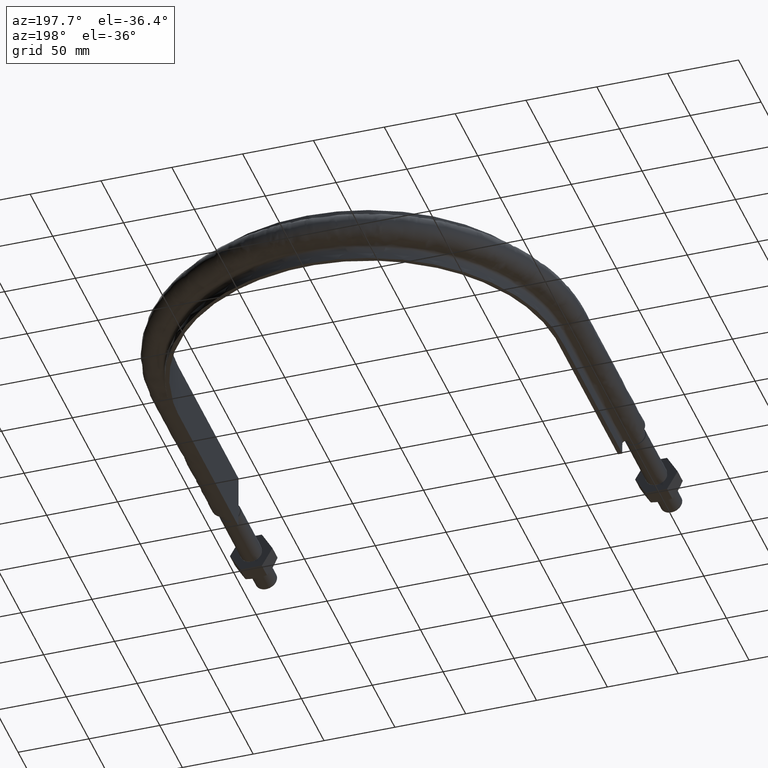
[diagram: clean part render]
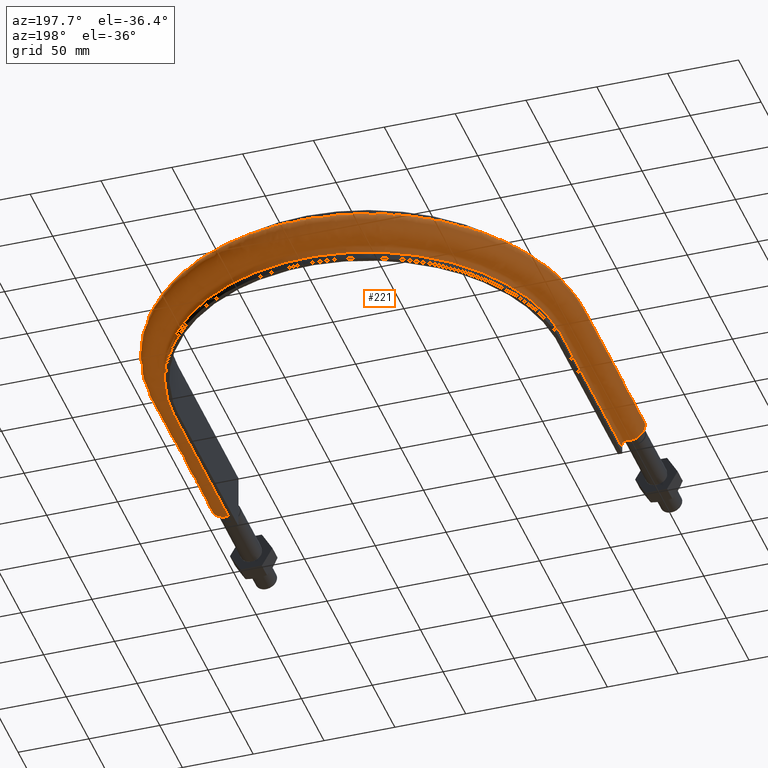
[diagram: same view with one face highlighted and labeled with its STEP entity id]
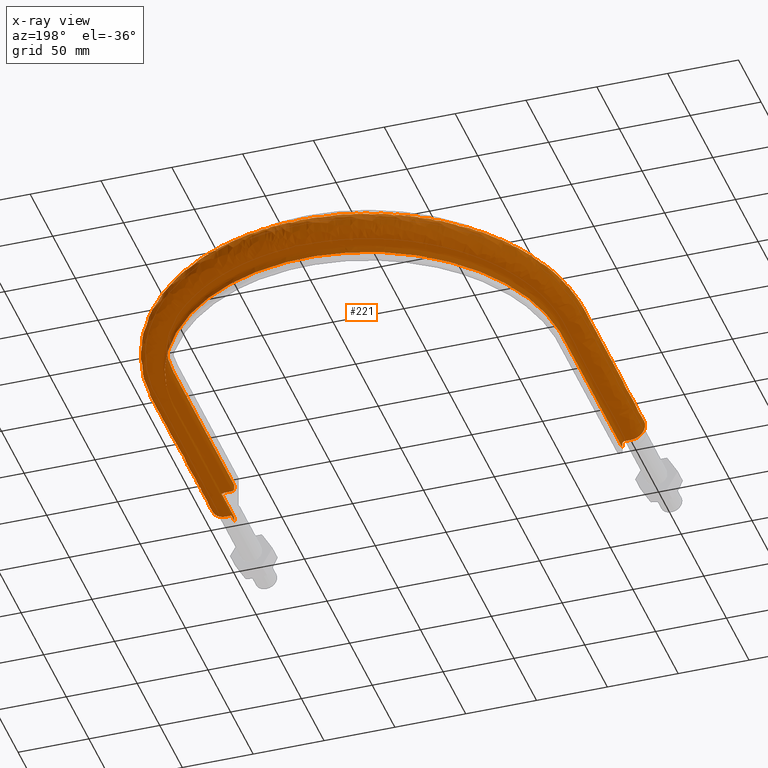
[diagram: x-ray of the same camera — body ghosted, the highlighted face saturated]
A machine part, auxiliary view. The second image highlights one B-rep face of the part: STEP entity #221.
The next image is the same camera in x-ray: the body ghosted, the highlighted face saturated — about 0% of this face is hidden behind the body in this view.
In plain terms, the highlighted face is a freeform B-spline surface patch.
Its self-contained STEP definition (entity closure, byte-faithful):
#221 = ADVANCED_FACE( '', ( #282 ), #283, .F. );
#282 = FACE_OUTER_BOUND( '', #422, .T. );
#283 = B_SPLINE_SURFACE_WITH_KNOTS( '', 3, 3, ( ( #423, #424, #425, #426, #427, #428, #429, #430, #431, #432, #433, #434, #435, #436, #437, #438, #439 ), ( #440, #441, #442, #443, #444, #445, #446, #447, #448, #449, #450, #451, #452, #453, #454, #455, #456 ), ( #457, #458, #459, #460, #461, #462, #463, #464, #465, #466, #467, #468, #469, #470, #471, #472, #473 ), ( #474, #475, #476, #477, #478, #479, #480, #481, #482, #483, #484, #485, #486, #487, #488, #489, #490 ), ( #491, #492, #493, #494, #495, #496, #497, #498, #499, #500, #501, #502, #503, #504, #505, #506, #507 ), ( #508, #509, #510, #511, #512, #513, #514, #515, #516, #517, #518, #519, #520, #521, #522, #523, #524 ), ( #525, #526, #527, #528, #529, #530, #531, #532, #533, #534, #535, #536, #537, #538, #539, #540, #541 ), ( #542, #543, #544, #545, #546, #547, #548, #549, #550, #551, #552, #553, #554, #555, #556, #557, #558 ), ( #559, #560, #561, #562, #563, #564, #565, #566, #567, #568, #569, #570, #571, #572, #573, #574, #575 ), ( #576, #577, #578, #579, #580, #581, #582, #583, #584, #585, #586, #587, #588, #589, #590, #591, #592 ), ( #593, #594, #595, #596, #597, #598, #599, #600, #601, #602, #603, #604, #605, #606, #607, #608, #609 ), ( #610, #611, #612, #613, #614, #615, #616, #617, #618, #619, #620, #621, #622, #623, #624, #625, #626 ), ( #627, #628, #629, #630, #631, #632, #633, #634, #635, #636, #637, #638, #639, #640, #641, #642, #643 ), ( #644, #645, #646, #647, #648, #649, #650, #651, #652, #653, #654, #655, #656, #657, #658, #659, #660 ), ( #661, #662, #663, #664, #665, #666, #667, #668, #669, #670, #671, #672, #673, #674, #675, #676, #677 ), ( #678, #679, #680, #681, #682, #683, #684, #685, #686, #687, #688, #689, #690, #691, #692, #693, #694 ), ( #695, #696, #697, #698, #699, #700, #701, #702, #703, #704, #705, #706, #707, #708, #709, #710, #711 ), ( #712, #713, #714, #715, #716, #717, #718, #719, #720, #721, #722, #723, #724, #725, #726, #727, #728 ), ( #729, #730, #731, #732, #733, #734, #735, #736, #737, #738, #739, #740, #741, #742, #743, #744, #745 ), ( #746, #747, #748, #749, #750, #751, #752, #753, #754, #755, #756, #757, #758, #759, #760, #761, #762 ), ( #763, #764, #765, #766, #767, #768, #769, #770, #771, #772, #773, #774, #775, #776, #777, #778, #779 ), ( #780, #781, #782, #783, #784, #785, #786, #787, #788, #789, #790, #791, #792, #793, #794, #795, #796 ), ( #797, #798, #799, #800, #801, #802, #803, #804, #805, #806, #807, #808, #809, #810, #811, #812, #813 ), ( #814, #815, #816, #817, #818, #819, #820, #821, #822, #823, #824, #825, #826, #827, #828, #829, #830 ), ( #831, #832, #833, #834, #835, #836, #837, #838, #839, #840, #841, #842, #843, #844, #845, #846, #847 ), ( #848, #849, #850, #851, #852, #853, #854, #855, #856, #857, #858, #859, #860, #861, #862, #863, #864 ), ( #865, #866, #867, #868, #869, #870, #871, #872, #873, #874, #875, #876, #877, #878, #879, #880, #881 ), ( #882, #883, #884, #885, #886, #887, #888, #889, #890, #891, #892, #893, #894, #895, #896, #897, #898 ), ( #899, #900, #901, #902, #903, #904, #905, #906, #907, #908, #909, #910, #911, #912, #913, #914, #915 ), ( #916, #917, #918, #919, #920, #921, #922, #923, #924, #925, #926, #927, #928, #929, #930, #931, #932 ), ( #933, #934, #935, #936, #937, #938, #939, #940, #941, #942, #943, #944, #945, #946, #947, #948, #949 ), ( #950, #951, #952, #953, #954, #955, #956, #957, #958, #959, #960, #961, #962, #963, #964, #965, #966 ) ), .UNSPECIFIED., .F., .F., .F., ( 4, 3, 1, 1, 1, 3, 3, 1, 1, 1, 1, 3, 3, 1, 1, 1, 3, 4 ), ( 4, 3, 1, 1, 1, 1, 1, 1, 1, 3, 4 ), ( 0.100000000000000, 0.150000000000000, 0.200000000000000, 0.250000000000000, 0.300000000000000, 0.350000000000000, 0.400000000000000, 0.450000000000000, 0.500000000000000, 0.550000000000000, 0.600000000000000, 0.650000000000000, 0.700000000000000, 0.750000000000000, 0.800000000000000, 0.850000000000000, 0.900000000000000, 0.950000000000000 ), ( 0.000000000000000, 1.00000000000000, 2.00000000000000, 3.00000000000000, 4.00000000000000, 5.00000000000000, 6.00000000000000, 7.00000000000000, 8.00000000000000, 9.00000000000000, 10.0000000000000 ), .UNSPECIFIED. );
#422 = EDGE_LOOP( '', ( #1668, #1669, #1670, #1671 ) );
#423 = CARTESIAN_POINT( '', ( 136.950000000000, 89.5000000000000, -20.0000000000000 ) );
#424 = CARTESIAN_POINT( '', ( 136.950000000000, 133.683333333333, -20.0000000000000 ) );
#425 = CARTESIAN_POINT( '', ( 136.950000000000, 177.866666666667, -20.0000000000000 ) );
#426 = CARTESIAN_POINT( '', ( 136.950000000000, 222.050000000000, -20.0000000000000 ) );
#427 = CARTESIAN_POINT( '', ( 136.950000000000, 239.963857435017, -20.0000000000000 ) );
#428 = CARTESIAN_POINT( '', ( 129.819269813161, 275.827750890366, -20.0000000000000 ) );
#429 = CARTESIAN_POINT( '', ( 99.3593675184605, 321.408062105588, -20.0000000000001 ) );
#430 = CARTESIAN_POINT( '', ( 53.7729022139835, 351.869642788268, -20.0000000000000 ) );
#431 = CARTESIAN_POINT( '', ( 1.22462518558505E-013, 362.565178605866, -20.0000000000000 ) );
#432 = CARTESIAN_POINT( '', ( -53.7729022139834, 351.869642788267, -20.0000000000000 ) );
#433 = CARTESIAN_POINT( '', ( -99.3593675184604, 321.408062105588, -20.0000000000000 ) );
#434 = CARTESIAN_POINT( '', ( -129.819269813161, 275.827750890366, -20.0000000000000 ) );
#435 = CARTESIAN_POINT( '', ( -136.950000000000, 239.963857435017, -20.0000000000000 ) );
#436 = CARTESIAN_POINT( '', ( -136.950000000000, 222.050000000000, -20.0000000000000 ) );
#437 = CARTESIAN_POINT( '', ( -136.950000000000, 177.866666666667, -20.0000000000000 ) );
#438 = CARTESIAN_POINT( '', ( -136.950000000000, 133.683333333333, -20.0000000000000 ) );
#439 = CARTESIAN_POINT( '', ( -136.950000000000, 89.5000000000001, -20.0000000000000 ) );
#440 = CARTESIAN_POINT( '', ( 136.950000000000, 89.5000000000000, -17.3666666666667 ) );
#441 = CARTESIAN_POINT( '', ( 136.950000000000, 133.683333333333, -17.3666666666667 ) );
#442 = CARTESIAN_POINT( '', ( 136.950000000000, 177.866666666667, -17.3666666666667 ) );
#443 = CARTESIAN_POINT( '', ( 136.950000000000, 222.050000000000, -17.3666666666667 ) );
#444 = CARTESIAN_POINT( '', ( 136.950000000000, 239.963857435017, -17.3666666666667 ) );
#445 = CARTESIAN_POINT( '', ( 129.819269813161, 275.827750890366, -17.3666666666667 ) );
#446 = CARTESIAN_POINT( '', ( 99.3593675184605, 321.408062105588, -17.3666666666667 ) );
#447 = CARTESIAN_POINT( '', ( 53.7729022139835, 351.869642788268, -17.3666666666667 ) );
#448 = CARTESIAN_POINT( '', ( 1.13788901178621E-013, 362.565178605866, -17.3666666666667 ) );
#449 = CARTESIAN_POINT( '', ( -53.7729022139834, 351.869642788267, -17.3666666666667 ) );
#450 = CARTESIAN_POINT( '', ( -99.3593675184604, 321.408062105588, -17.3666666666667 ) );
#451 = CARTESIAN_POINT( '', ( -129.819269813161, 275.827750890366, -17.3666666666667 ) );
#452 = CARTESIAN_POINT( '', ( -136.950000000000, 239.963857435017, -17.3666666666667 ) );
#453 = CARTESIAN_POINT( '', ( -136.950000000000, 222.050000000000, -17.3666666666667 ) );
#454 = CARTESIAN_POINT( '', ( -136.950000000000, 177.866666666667, -17.3666666666667 ) );
#455 = CARTESIAN_POINT( '', ( -136.950000000000, 133.683333333333, -17.3666666666667 ) );
#456 = CARTESIAN_POINT( '', ( -136.950000000000, 89.5000000000001, -17.3666666666667 ) );
#457 = CARTESIAN_POINT( '', ( 136.950000000000, 89.5000000000000, -14.7333333333333 ) );
#458 = CARTESIAN_POINT( '', ( 136.950000000000, 133.683333333333, -14.7333333333333 ) );
#459 = CARTESIAN_POINT( '', ( 136.950000000000, 177.866666666667, -14.7333333333333 ) );
#460 = CARTESIAN_POINT( '', ( 136.950000000000, 222.050000000000, -14.7333333333333 ) );
#461 = CARTESIAN_POINT( '', ( 136.950000000000, 239.963857435017, -14.7333333333333 ) );
#462 = CARTESIAN_POINT( '', ( 129.819269813161, 275.827750890366, -14.7333333333333 ) );
#463 = CARTESIAN_POINT( '', ( 99.3593675184605, 321.408062105588, -14.7333333333334 ) );
#464 = CARTESIAN_POINT( '', ( 53.7729022139835, 351.869642788268, -14.7333333333333 ) );
#465 = CARTESIAN_POINT( '', ( 1.05115283798737E-013, 362.565178605866, -14.7333333333333 ) );
#466 = CARTESIAN_POINT( '', ( -53.7729022139834, 351.869642788267, -14.7333333333333 ) );
#467 = CARTESIAN_POINT( '', ( -99.3593675184604, 321.408062105588, -14.7333333333333 ) );
#468 = CARTESIAN_POINT( '', ( -129.819269813161, 275.827750890366, -14.7333333333333 ) );
#469 = CARTESIAN_POINT( '', ( -136.950000000000, 239.963857435017, -14.7333333333333 ) );
#470 = CARTESIAN_POINT( '', ( -136.950000000000, 222.050000000000, -14.7333333333333 ) );
#471 = CARTESIAN_POINT( '', ( -136.950000000000, 177.866666666667, -14.7333333333333 ) );
#472 = CARTESIAN_POINT( '', ( -136.950000000000, 133.683333333333, -14.7333333333333 ) );
#473 = CARTESIAN_POINT( '', ( -136.950000000000, 89.5000000000001, -14.7333333333333 ) );
#474 = CARTESIAN_POINT( '', ( 136.950000000000, 89.5000000000000, -12.1000000000000 ) );
#475 = CARTESIAN_POINT( '', ( 136.950000000000, 133.683333333333, -12.1000000000000 ) );
#476 = CARTESIAN_POINT( '', ( 136.950000000000, 177.866666666667, -12.1000000000000 ) );
#477 = CARTESIAN_POINT( '', ( 136.950000000000, 222.050000000000, -12.1000000000000 ) );
#478 = CARTESIAN_POINT( '', ( 136.950000000000, 239.963857435017, -12.1000000000000 ) );
#479 = CARTESIAN_POINT( '', ( 129.819269813161, 275.827750890366, -12.1000000000000 ) );
#480 = CARTESIAN_POINT( '', ( 99.3593675184605, 321.408062105588, -12.1000000000000 ) );
#481 = CARTESIAN_POINT( '', ( 53.7729022139835, 351.869642788268, -12.1000000000000 ) );
#482 = CARTESIAN_POINT( '', ( 9.47069429428763E-014, 362.565178605866, -12.1000000000000 ) );
#483 = CARTESIAN_POINT( '', ( -53.7729022139834, 351.869642788267, -12.1000000000000 ) );
#484 = CARTESIAN_POINT( '', ( -99.3593675184604, 321.408062105588, -12.1000000000000 ) );
#485 = CARTESIAN_POINT( '', ( -129.819269813161, 275.827750890366, -12.1000000000000 ) );
#486 = CARTESIAN_POINT( '', ( -136.950000000000, 239.963857435017, -12.1000000000000 ) );
#487 = CARTESIAN_POINT( '', ( -136.950000000000, 222.050000000000, -12.1000000000000 ) );
#488 = CARTESIAN_POINT( '', ( -136.950000000000, 177.866666666667, -12.1000000000000 ) );
#489 = CARTESIAN_POINT( '', ( -136.950000000000, 133.683333333333, -12.1000000000000 ) );
#490 = CARTESIAN_POINT( '', ( -136.950000000000, 89.5000000000001, -12.1000000000000 ) );
#491 = CARTESIAN_POINT( '', ( 136.950000000000, 89.5000000000000, -11.8382358417233 ) );
#492 = CARTESIAN_POINT( '', ( 136.950000000000, 133.683333333333, -11.8382358417233 ) );
#493 = CARTESIAN_POINT( '', ( 136.950000000000, 177.866666666667, -11.8382358417233 ) );
#494 = CARTESIAN_POINT( '', ( 136.950000000000, 222.050000000000, -11.8382358417233 ) );
#495 = CARTESIAN_POINT( '', ( 136.950000000000, 239.963857435017, -11.8382358417233 ) );
#496 = CARTESIAN_POINT( '', ( 129.819269813161, 275.827750890366, -11.8382358417233 ) );
#497 = CARTESIAN_POINT( '', ( 99.3593675184605, 321.408062105588, -11.8382358417233 ) );
#498 = CARTESIAN_POINT( '', ( 53.7729022139835, 351.869642788268, -11.8382358417233 ) );
#499 = CARTESIAN_POINT( '', ( 9.29722194668995E-014, 362.565178605866, -11.8382358417233 ) );
#500 = CARTESIAN_POINT( '', ( -53.7729022139834, 351.869642788267, -11.8382358417233 ) );
#501 = CARTESIAN_POINT( '', ( -99.3593675184604, 321.408062105588, -11.8382358417233 ) );
#502 = CARTESIAN_POINT( '', ( -129.819269813161, 275.827750890366, -11.8382358417233 ) );
#503 = CARTESIAN_POINT( '', ( -136.950000000000, 239.963857435017, -11.8382358417233 ) );
#504 = CARTESIAN_POINT( '', ( -136.950000000000, 222.050000000000, -11.8382358417233 ) );
#505 = CARTESIAN_POINT( '', ( -136.950000000000, 177.866666666667, -11.8382358417233 ) );
#506 = CARTESIAN_POINT( '', ( -136.950000000000, 133.683333333333, -11.8382358417233 ) );
#507 = CARTESIAN_POINT( '', ( -136.950000000000, 89.5000000000001, -11.8382358417233 ) );
#508 = CARTESIAN_POINT( '', ( 137.054136256836, 89.5000000000000, -11.3147075251700 ) );
#509 = CARTESIAN_POINT( '', ( 137.054136256836, 133.683333333333, -11.3147075251700 ) );
#510 = CARTESIAN_POINT( '', ( 137.054136256836, 177.866666666667, -11.3147075251700 ) );
#511 = CARTESIAN_POINT( '', ( 137.054136256836, 222.050000000000, -11.3147075251700 ) );
#512 = CARTESIAN_POINT( '', ( 137.054136256836, 239.977666761268, -11.3147075251700 ) );
#513 = CARTESIAN_POINT( '', ( 129.917983890003, 275.868556141443, -11.3147075251700 ) );
#514 = CARTESIAN_POINT( '', ( 99.4349200019578, 321.483637058641, -11.3147075251700 ) );
#515 = CARTESIAN_POINT( '', ( 53.8137909234086, 351.968350445237, -11.3147075251700 ) );
#516 = CARTESIAN_POINT( '', ( 1.01658921833856E-013, 362.672029162636, -11.3147075251700 ) );
#517 = CARTESIAN_POINT( '', ( -53.8137909234086, 351.968350445236, -11.3147075251700 ) );
#518 = CARTESIAN_POINT( '', ( -99.4349200019577, 321.483637058641, -11.3147075251700 ) );
#519 = CARTESIAN_POINT( '', ( -129.917983890003, 275.868556141442, -11.3147075251700 ) );
#520 = CARTESIAN_POINT( '', ( -137.054136256836, 239.977666761268, -11.3147075251700 ) );
#521 = CARTESIAN_POINT( '', ( -137.054136256836, 222.050000000000, -11.3147075251700 ) );
#522 = CARTESIAN_POINT( '', ( -137.054136256836, 177.866666666667, -11.3147075251700 ) );
#523 = CARTESIAN_POINT( '', ( -137.054136256836, 133.683333333333, -11.3147075251700 ) );
#524 = CARTESIAN_POINT( '', ( -137.054136256836, 89.5000000000001, -11.3147075251700 ) );
#525 = CARTESIAN_POINT( '', ( 137.498968710939, 89.5000000000000, -10.6489687109389 ) );
#526 = CARTESIAN_POINT( '', ( 137.498968710939, 133.683333333333, -10.6489687109389 ) );
#527 = CARTESIAN_POINT( '', ( 137.498968710939, 177.866666666667, -10.6489687109389 ) );
#528 = CARTESIAN_POINT( '', ( 137.498968710939, 222.050000000000, -10.6489687109389 ) );
#529 = CARTESIAN_POINT( '', ( 137.498968710939, 240.036655212290, -10.6489687109389 ) );
#530 = CARTESIAN_POINT( '', ( 130.339654750761, 276.042861426923, -10.6489687109389 ) );
#531 = CARTESIAN_POINT( '', ( 99.7576529066044, 321.806465945108, -10.6489687109389 ) );
#532 = CARTESIAN_POINT( '', ( 53.9884527127922, 352.389993882618, -10.6489687109389 ) );
#533 = CARTESIAN_POINT( '', ( 1.01714816169685E-013, 363.128456125100, -10.6489687109389 ) );
#534 = CARTESIAN_POINT( '', ( -53.9884527127922, 352.389993882617, -10.6489687109389 ) );
#535 = CARTESIAN_POINT( '', ( -99.7576529066043, 321.806465945108, -10.6489687109389 ) );
#536 = CARTESIAN_POINT( '', ( -130.339654750761, 276.042861426923, -10.6489687109389 ) );
#537 = CARTESIAN_POINT( '', ( -137.498968710939, 240.036655212290, -10.6489687109389 ) );
#538 = CARTESIAN_POINT( '', ( -137.498968710939, 222.050000000000, -10.6489687109389 ) );
#539 = CARTESIAN_POINT( '', ( -137.498968710939, 177.866666666667, -10.6489687109389 ) );
#540 = CARTESIAN_POINT( '', ( -137.498968710939, 133.683333333333, -10.6489687109389 ) );
#541 = CARTESIAN_POINT( '', ( -137.498968710939, 89.5000000000001, -10.6489687109389 ) );
#542 = CARTESIAN_POINT( '', ( 138.164707525170, 89.5000000000000, -10.2041362568359 ) );
#543 = CARTESIAN_POINT( '', ( 138.164707525170, 133.683333333333, -10.2041362568359 ) );
#544 = CARTESIAN_POINT( '', ( 138.164707525170, 177.866666666667, -10.2041362568359 ) );
#545 = CARTESIAN_POINT( '', ( 138.164707525170, 222.050000000000, -10.2041362568359 ) );
#546 = CARTESIAN_POINT( '', ( 138.164707525170, 240.124937668020, -10.2041362568359 ) );
#547 = CARTESIAN_POINT( '', ( 130.970729790920, 276.303727721636, -10.2041362568359 ) );
#548 = CARTESIAN_POINT( '', ( 100.240656831500, 322.289613516949, -10.2041362568359 ) );
#549 = CARTESIAN_POINT( '', ( 54.2498525533012, 353.021027880792, -10.2041362568359 ) );
#550 = CARTESIAN_POINT( '', ( 9.65942975268569E-014, 363.811547347359, -10.2041362568359 ) );
#551 = CARTESIAN_POINT( '', ( -54.2498525533011, 353.021027880792, -10.2041362568359 ) );
#552 = CARTESIAN_POINT( '', ( -100.240656831500, 322.289613516949, -10.2041362568359 ) );
#553 = CARTESIAN_POINT( '', ( -130.970729790920, 276.303727721636, -10.2041362568359 ) );
#554 = CARTESIAN_POINT( '', ( -138.164707525170, 240.124937668020, -10.2041362568359 ) );
#555 = CARTESIAN_POINT( '', ( -138.164707525170, 222.050000000000, -10.2041362568359 ) );
#556 = CARTESIAN_POINT( '', ( -138.164707525170, 177.866666666667, -10.2041362568359 ) );
#557 = CARTESIAN_POINT( '', ( -138.164707525170, 133.683333333333, -10.2041362568359 ) );
#558 = CARTESIAN_POINT( '', ( -138.164707525170, 89.5000000000001, -10.2041362568359 ) );
#559 = CARTESIAN_POINT( '', ( 138.688235841723, 89.5000000000000, -10.1000000000000 ) );
#560 = CARTESIAN_POINT( '', ( 138.688235841723, 133.683333333333, -10.1000000000000 ) );
#561 = CARTESIAN_POINT( '', ( 138.688235841723, 177.866666666667, -10.1000000000000 ) );
#562 = CARTESIAN_POINT( '', ( 138.688235841723, 222.050000000000, -10.1000000000000 ) );
#563 = CARTESIAN_POINT( '', ( 138.688235841723, 240.194361839244, -10.1000000000000 ) );
#564 = CARTESIAN_POINT( '', ( 131.466998967857, 276.508869571859, -10.1000000000000 ) );
#565 = CARTESIAN_POINT( '', ( 100.620484815515, 322.669554463046, -10.1000000000000 ) );
#566 = CARTESIAN_POINT( '', ( 54.4554139769760, 353.517264782848, -10.1000000000000 ) );
#567 = CARTESIAN_POINT( '', ( 9.83948036750993E-014, 364.348721371161, -10.1000000000000 ) );
#568 = CARTESIAN_POINT( '', ( -54.4554139769760, 353.517264782848, -10.1000000000000 ) );
#569 = CARTESIAN_POINT( '', ( -100.620484815514, 322.669554463046, -10.1000000000000 ) );
#570 = CARTESIAN_POINT( '', ( -131.466998967857, 276.508869571859, -10.1000000000000 ) );
#571 = CARTESIAN_POINT( '', ( -138.688235841723, 240.194361839244, -10.1000000000000 ) );
#572 = CARTESIAN_POINT( '', ( -138.688235841723, 222.050000000000, -10.1000000000000 ) );
#573 = CARTESIAN_POINT( '', ( -138.688235841723, 177.866666666667, -10.1000000000000 ) );
#574 = CARTESIAN_POINT( '', ( -138.688235841723, 133.683333333333, -10.1000000000000 ) );
#575 = CARTESIAN_POINT( '', ( -138.688235841723, 89.5000000000001, -10.1000000000000 ) );
#576 = CARTESIAN_POINT( '', ( 138.950000000000, 89.5000000000000, -10.1000000000000 ) );
#577 = CARTESIAN_POINT( '', ( 138.950000000000, 133.683333333333, -10.1000000000000 ) );
#578 = CARTESIAN_POINT( '', ( 138.950000000000, 177.866666666667, -10.1000000000000 ) );
#579 = CARTESIAN_POINT( '', ( 138.950000000000, 222.050000000000, -10.1000000000000 ) );
#580 = CARTESIAN_POINT( '', ( 138.950000000000, 240.229073924856, -10.1000000000000 ) );
#581 = CARTESIAN_POINT( '', ( 131.715133556325, 276.611440496970, -10.1000000000000 ) );
#582 = CARTESIAN_POINT( '', ( 100.810398807522, 322.859524936095, -10.1000000000000 ) );
#583 = CARTESIAN_POINT( '', ( 54.5581946888135, 353.765383233876, -10.1000000000000 ) );
#584 = CARTESIAN_POINT( '', ( 9.32235245833017E-014, 364.617308383062, -10.1000000000000 ) );
#585 = CARTESIAN_POINT( '', ( -54.5581946888134, 353.765383233876, -10.1000000000000 ) );
#586 = CARTESIAN_POINT( '', ( -100.810398807522, 322.859524936095, -10.1000000000000 ) );
#587 = CARTESIAN_POINT( '', ( -131.715133556325, 276.611440496970, -10.1000000000000 ) );
#588 = CARTESIAN_POINT( '', ( -138.950000000000, 240.229073924856, -10.1000000000000 ) );
#589 = CARTESIAN_POINT( '', ( -138.950000000000, 222.050000000000, -10.1000000000000 ) );
#590 = CARTESIAN_POINT( '', ( -138.950000000000, 177.866666666667, -10.1000000000000 ) );
#591 = CARTESIAN_POINT( '', ( -138.950000000000, 133.683333333333, -10.1000000000000 ) );
#592 = CARTESIAN_POINT( '', ( -138.950000000000, 89.5000000000001, -10.1000000000000 ) );
#593 = CARTESIAN_POINT( '', ( 140.300000000000, 89.5000000000000, -10.1000000000000 ) );
#594 = CARTESIAN_POINT( '', ( 140.300000000000, 133.683333333333, -10.1000000000000 ) );
#595 = CARTESIAN_POINT( '', ( 140.300000000000, 177.866666666667, -10.1000000000000 ) );
#596 = CARTESIAN_POINT( '', ( 140.300000000000, 222.050000000000, -10.1000000000000 ) );
#597 = CARTESIAN_POINT( '', ( 140.300000000000, 240.408095055498, -10.1000000000000 ) );
#598 = CARTESIAN_POINT( '', ( 132.994841582961, 277.140430981428, -10.1000000000000 ) );
#599 = CARTESIAN_POINT( '', ( 101.789844927638, 323.839262346687, -10.1000000000000 ) );
#600 = CARTESIAN_POINT( '', ( 55.0882671093237, 355.045008034661, -10.1000000000000 ) );
#601 = CARTESIAN_POINT( '', ( 1.21148731152502E-013, 366.002495982669, -10.1000000000000 ) );
#602 = CARTESIAN_POINT( '', ( -55.0882671093237, 355.045008034661, -10.1000000000000 ) );
#603 = CARTESIAN_POINT( '', ( -101.789844927638, 323.839262346687, -10.1000000000000 ) );
#604 = CARTESIAN_POINT( '', ( -132.994841582961, 277.140430981428, -10.1000000000000 ) );
#605 = CARTESIAN_POINT( '', ( -140.300000000000, 240.408095055498, -10.1000000000000 ) );
#606 = CARTESIAN_POINT( '', ( -140.300000000000, 222.050000000000, -10.1000000000000 ) );
#607 = CARTESIAN_POINT( '', ( -140.300000000000, 177.866666666667, -10.1000000000000 ) );
#608 = CARTESIAN_POINT( '', ( -140.300000000000, 133.683333333333, -10.1000000000000 ) );
#609 = CARTESIAN_POINT( '', ( -140.300000000000, 89.5000000000001, -10.1000000000000 ) );
#610 = CARTESIAN_POINT( '', ( 141.650000000000, 89.5000000000000, -10.1000000000000 ) );
#611 = CARTESIAN_POINT( '', ( 141.650000000000, 133.683333333333, -10.1000000000000 ) );
#612 = CARTESIAN_POINT( '', ( 141.650000000000, 177.866666666667, -10.1000000000000 ) );
#613 = CARTESIAN_POINT( '', ( 141.650000000000, 222.050000000000, -10.1000000000000 ) );
#614 = CARTESIAN_POINT( '', ( 141.650000000000, 240.587116186140, -10.1000000000000 ) );
#615 = CARTESIAN_POINT( '', ( 134.274549609597, 277.669421465886, -10.1000000000000 ) );
#616 = CARTESIAN_POINT( '', ( 102.769291047754, 324.818999757278, -10.1000000000000 ) );
#617 = CARTESIAN_POINT( '', ( 55.6183395298340, 356.324632835447, -10.1000000000000 ) );
#618 = CARTESIAN_POINT( '', ( 1.17848915154120E-013, 367.387683582277, -10.1000000000000 ) );
#619 = CARTESIAN_POINT( '', ( -55.6183395298339, 356.324632835447, -10.1000000000000 ) );
#620 = CARTESIAN_POINT( '', ( -102.769291047754, 324.818999757278, -10.1000000000000 ) );
#621 = CARTESIAN_POINT( '', ( -134.274549609597, 277.669421465886, -10.1000000000000 ) );
#622 = CARTESIAN_POINT( '', ( -141.650000000000, 240.587116186140, -10.1000000000000 ) );
#623 = CARTESIAN_POINT( '', ( -141.650000000000, 222.050000000000, -10.1000000000000 ) );
#624 = CARTESIAN_POINT( '', ( -141.650000000000, 177.866666666667, -10.1000000000000 ) );
#625 = CARTESIAN_POINT( '', ( -141.650000000000, 133.683333333333, -10.1000000000000 ) );
#626 = CARTESIAN_POINT( '', ( -141.650000000000, 89.5000000000001, -10.1000000000000 ) );
#627 = CARTESIAN_POINT( '', ( 143.000000000000, 89.5000000000000, -10.1000000000000 ) );
#628 = CARTESIAN_POINT( '', ( 143.000000000000, 133.683333333333, -10.1000000000000 ) );
#629 = CARTESIAN_POINT( '', ( 143.000000000000, 177.866666666667, -10.1000000000000 ) );
#630 = CARTESIAN_POINT( '', ( 143.000000000000, 222.050000000000, -10.1000000000000 ) );
#631 = CARTESIAN_POINT( '', ( 143.000000000000, 240.766137316781, -10.1000000000000 ) );
#632 = CARTESIAN_POINT( '', ( 135.554257636233, 278.198411950344, -10.1000000000000 ) );
#633 = CARTESIAN_POINT( '', ( 103.748737167870, 325.798737167870, -10.1000000000000 ) );
#634 = CARTESIAN_POINT( '', ( 56.1484119503442, 357.604257636233, -10.1000000000000 ) );
#635 = CARTESIAN_POINT( '', ( 1.14549099155738E-013, 368.772871181884, -10.1000000000000 ) );
#636 = CARTESIAN_POINT( '', ( -56.1484119503442, 357.604257636232, -10.1000000000000 ) );
#637 = CARTESIAN_POINT( '', ( -103.748737167870, 325.798737167870, -10.1000000000000 ) );
#638 = CARTESIAN_POINT( '', ( -135.554257636232, 278.198411950344, -10.1000000000000 ) );
#639 = CARTESIAN_POINT( '', ( -143.000000000000, 240.766137316781, -10.1000000000000 ) );
#640 = CARTESIAN_POINT( '', ( -143.000000000000, 222.050000000000, -10.1000000000000 ) );
#641 = CARTESIAN_POINT( '', ( -143.000000000000, 177.866666666667, -10.1000000000000 ) );
#642 = CARTESIAN_POINT( '', ( -143.000000000000, 133.683333333333, -10.1000000000000 ) );
#643 = CARTESIAN_POINT( '', ( -143.000000000000, 89.5000000000001, -10.1000000000000 ) );
#644 = CARTESIAN_POINT( '', ( 145.113419413283, 89.5000000000000, -10.1000000000000 ) );
#645 = CARTESIAN_POINT( '', ( 145.113419413283, 133.683333333333, -10.1000000000000 ) );
#646 = CARTESIAN_POINT( '', ( 145.113419413283, 177.866666666667, -10.1000000000000 ) );
#647 = CARTESIAN_POINT( '', ( 145.113419413283, 222.050000000000, -10.1000000000000 ) );
#648 = CARTESIAN_POINT( '', ( 145.113419413283, 241.046394155956, -10.1000000000000 ) );
#649 = CARTESIAN_POINT( '', ( 137.557635256104, 279.026544364637, -10.1000000000000 ) );
#650 = CARTESIAN_POINT( '', ( 105.282056015662, 327.332512029696, -10.1000000000000 ) );
#651 = CARTESIAN_POINT( '', ( 56.9782381310496, 359.607504966380, -10.1000000000000 ) );
#652 = CARTESIAN_POINT( '', ( 9.22632505238703E-014, 370.941376636735, -10.1000000000000 ) );
#653 = CARTESIAN_POINT( '', ( -56.9782381310496, 359.607504966380, -10.1000000000000 ) );
#654 = CARTESIAN_POINT( '', ( -105.282056015662, 327.332512029696, -10.1000000000000 ) );
#655 = CARTESIAN_POINT( '', ( -137.557635256104, 279.026544364637, -10.1000000000000 ) );
#656 = CARTESIAN_POINT( '', ( -145.113419413283, 241.046394155956, -10.1000000000000 ) );
#657 = CARTESIAN_POINT( '', ( -145.113419413283, 222.050000000000, -10.1000000000000 ) );
#658 = CARTESIAN_POINT( '', ( -145.113419413283, 177.866666666667, -10.1000000000000 ) );
#659 = CARTESIAN_POINT( '', ( -145.113419413283, 133.683333333333, -10.1000000000000 ) );
#660 = CARTESIAN_POINT( '', ( -145.113419413283, 89.5000000000001, -10.1000000000000 ) );
#661 = CARTESIAN_POINT( '', ( 149.340258239849, 89.5000000000000, -8.72661681244670 ) );
#662 = CARTESIAN_POINT( '', ( 149.340258239849, 133.683333333333, -8.72661681244670 ) );
#663 = CARTESIAN_POINT( '', ( 149.340258239849, 177.866666666667, -8.72661681244670 ) );
#664 = CARTESIAN_POINT( '', ( 149.340258239849, 222.050000000000, -8.72661681244670 ) );
#665 = CARTESIAN_POINT( '', ( 149.340258239849, 241.606907834306, -8.72661681244670 ) );
#666 = CARTESIAN_POINT( '', ( 141.564390495846, 280.682809193223, -8.72661681244670 ) );
#667 = CARTESIAN_POINT( '', ( 108.348693711245, 330.400061753347, -8.72661681244671 ) );
#668 = CARTESIAN_POINT( '', ( 58.6378904924604, 363.613999626674, -8.72661681244669 ) );
#669 = CARTESIAN_POINT( '', ( 9.10596401595553E-014, 375.278387546437, -8.72661681244670 ) );
#670 = CARTESIAN_POINT( '', ( -58.6378904924603, 363.613999626674, -8.72661681244671 ) );
#671 = CARTESIAN_POINT( '', ( -108.348693711245, 330.400061753347, -8.72661681244670 ) );
#672 = CARTESIAN_POINT( '', ( -141.564390495846, 280.682809193223, -8.72661681244670 ) );
#673 = CARTESIAN_POINT( '', ( -149.340258239849, 241.606907834306, -8.72661681244670 ) );
#674 = CARTESIAN_POINT( '', ( -149.340258239849, 222.050000000000, -8.72661681244670 ) );
#675 = CARTESIAN_POINT( '', ( -149.340258239849, 177.866666666667, -8.72661681244670 ) );
#676 = CARTESIAN_POINT( '', ( -149.340258239849, 133.683333333333, -8.72661681244670 ) );
#677 = CARTESIAN_POINT( '', ( -149.340258239849, 89.5000000000001, -8.72661681244670 ) );
#678 = CARTESIAN_POINT( '', ( 153.258753329527, 89.5000000000000, -3.33327101555837 ) );
#679 = CARTESIAN_POINT( '', ( 153.258753329527, 133.683333333333, -3.33327101555837 ) );
#680 = CARTESIAN_POINT( '', ( 153.258753329527, 177.866666666667, -3.33327101555837 ) );
#681 = CARTESIAN_POINT( '', ( 153.258753329527, 222.050000000000, -3.33327101555837 ) );
#682 = CARTESIAN_POINT( '', ( 153.258753329528, 242.126532590875, -3.33327101555837 ) );
#683 = CARTESIAN_POINT( '', ( 145.278856879990, 282.218251130879, -3.33327101555837 ) );
#684 = CARTESIAN_POINT( '', ( 111.191623201823, 333.243836740442, -3.33327101555838 ) );
#685 = CARTESIAN_POINT( '', ( 60.1764728457517, 367.328224440384, -3.33327101555837 ) );
#686 = CARTESIAN_POINT( '', ( 8.80825621399182E-014, 379.299017774099, -3.33327101555837 ) );
#687 = CARTESIAN_POINT( '', ( -60.1764728457517, 367.328224440384, -3.33327101555838 ) );
#688 = CARTESIAN_POINT( '', ( -111.191623201822, 333.243836740442, -3.33327101555837 ) );
#689 = CARTESIAN_POINT( '', ( -145.278856879990, 282.218251130878, -3.33327101555837 ) );
#690 = CARTESIAN_POINT( '', ( -153.258753329527, 242.126532590875, -3.33327101555837 ) );
#691 = CARTESIAN_POINT( '', ( -153.258753329527, 222.050000000000, -3.33327101555837 ) );
#692 = CARTESIAN_POINT( '', ( -153.258753329527, 177.866666666667, -3.33327101555837 ) );
#693 = CARTESIAN_POINT( '', ( -153.258753329527, 133.683333333333, -3.33327101555837 ) );
#694 = CARTESIAN_POINT( '', ( -153.258753329527, 89.5000000000001, -3.33327101555837 ) );
#695 = CARTESIAN_POINT( '', ( 153.258753329527, 89.5000000000000, 3.33327101555837 ) );
#696 = CARTESIAN_POINT( '', ( 153.258753329527, 133.683333333333, 3.33327101555837 ) );
#697 = CARTESIAN_POINT( '', ( 153.258753329527, 177.866666666667, 3.33327101555837 ) );
#698 = CARTESIAN_POINT( '', ( 153.258753329527, 222.050000000000, 3.33327101555837 ) );
#699 = CARTESIAN_POINT( '', ( 153.258753329528, 242.126532590875, 3.33327101555837 ) );
#700 = CARTESIAN_POINT( '', ( 145.278856879990, 282.218251130879, 3.33327101555837 ) );
#701 = CARTESIAN_POINT( '', ( 111.191623201823, 333.243836740442, 3.33327101555838 ) );
#702 = CARTESIAN_POINT( '', ( 60.1764728457517, 367.328224440384, 3.33327101555837 ) );
#703 = CARTESIAN_POINT( '', ( 8.80825621399182E-014, 379.299017774099, 3.33327101555837 ) );
#704 = CARTESIAN_POINT( '', ( -60.1764728457517, 367.328224440384, 3.33327101555838 ) );
#705 = CARTESIAN_POINT( '', ( -111.191623201822, 333.243836740442, 3.33327101555837 ) );
#706 = CARTESIAN_POINT( '', ( -145.278856879990, 282.218251130878, 3.33327101555837 ) );
#707 = CARTESIAN_POINT( '', ( -153.258753329527, 242.126532590875, 3.33327101555837 ) );
#708 = CARTESIAN_POINT( '', ( -153.258753329527, 222.050000000000, 3.33327101555837 ) );
#709 = CARTESIAN_POINT( '', ( -153.258753329527, 177.866666666667, 3.33327101555837 ) );
#710 = CARTESIAN_POINT( '', ( -153.258753329527, 133.683333333333, 3.33327101555837 ) );
#711 = CARTESIAN_POINT( '', ( -153.258753329527, 89.5000000000001, 3.33327101555837 ) );
#712 = CARTESIAN_POINT( '', ( 149.340258239849, 89.5000000000000, 8.72661681244669 ) );
#713 = CARTESIAN_POINT( '', ( 149.340258239849, 133.683333333333, 8.72661681244669 ) );
#714 = CARTESIAN_POINT( '', ( 149.340258239849, 177.866666666667, 8.72661681244669 ) );
#715 = CARTESIAN_POINT( '', ( 149.340258239849, 222.050000000000, 8.72661681244669 ) );
#716 = CARTESIAN_POINT( '', ( 149.340258239849, 241.606907834306, 8.72661681244669 ) );
#717 = CARTESIAN_POINT( '', ( 141.564390495846, 280.682809193223, 8.72661681244670 ) );
#718 = CARTESIAN_POINT( '', ( 108.348693711245, 330.400061753347, 8.72661681244671 ) );
#719 = CARTESIAN_POINT( '', ( 58.6378904924604, 363.613999626674, 8.72661681244669 ) );
#720 = CARTESIAN_POINT( '', ( 9.10596401595553E-014, 375.278387546437, 8.72661681244669 ) );
#721 = CARTESIAN_POINT( '', ( -58.6378904924603, 363.613999626674, 8.72661681244670 ) );
#722 = CARTESIAN_POINT( '', ( -108.348693711245, 330.400061753347, 8.72661681244669 ) );
#723 = CARTESIAN_POINT( '', ( -141.564390495846, 280.682809193223, 8.72661681244669 ) );
#724 = CARTESIAN_POINT( '', ( -149.340258239849, 241.606907834306, 8.72661681244669 ) );
#725 = CARTESIAN_POINT( '', ( -149.340258239849, 222.050000000000, 8.72661681244669 ) );
#726 = CARTESIAN_POINT( '', ( -149.340258239849, 177.866666666667, 8.72661681244669 ) );
#727 = CARTESIAN_POINT( '', ( -149.340258239849, 133.683333333333, 8.72661681244669 ) );
#728 = CARTESIAN_POINT( '', ( -149.340258239849, 89.5000000000001, 8.72661681244669 ) );
#729 = CARTESIAN_POINT( '', ( 145.113419413283, 89.5000000000000, 10.1000000000000 ) );
#730 = CARTESIAN_POINT( '', ( 145.113419413283, 133.683333333333, 10.1000000000000 ) );
#731 = CARTESIAN_POINT( '', ( 145.113419413283, 177.866666666667, 10.1000000000000 ) );
#732 = CARTESIAN_POINT( '', ( 145.113419413283, 222.050000000000, 10.1000000000000 ) );
#733 = CARTESIAN_POINT( '', ( 145.113419413283, 241.046394155956, 10.1000000000000 ) );
#734 = CARTESIAN_POINT( '', ( 137.557635256104, 279.026544364637, 10.1000000000000 ) );
#735 = CARTESIAN_POINT( '', ( 105.282056015662, 327.332512029696, 10.1000000000000 ) );
#736 = CARTESIAN_POINT( '', ( 56.9782381310496, 359.607504966380, 10.1000000000000 ) );
#737 = CARTESIAN_POINT( '', ( 9.22632505238703E-014, 370.941376636735, 10.1000000000000 ) );
#738 = CARTESIAN_POINT( '', ( -56.9782381310496, 359.607504966380, 10.1000000000000 ) );
#739 = CARTESIAN_POINT( '', ( -105.282056015662, 327.332512029696, 10.1000000000000 ) );
#740 = CARTESIAN_POINT( '', ( -137.557635256104, 279.026544364637, 10.1000000000000 ) );
#741 = CARTESIAN_POINT( '', ( -145.113419413283, 241.046394155956, 10.1000000000000 ) );
#742 = CARTESIAN_POINT( '', ( -145.113419413283, 222.050000000000, 10.1000000000000 ) );
#743 = CARTESIAN_POINT( '', ( -145.113419413283, 177.866666666667, 10.1000000000000 ) );
#744 = CARTESIAN_POINT( '', ( -145.113419413283, 133.683333333333, 10.1000000000000 ) );
#745 = CARTESIAN_POINT( '', ( -145.113419413283, 89.5000000000001, 10.1000000000000 ) );
#746 = CARTESIAN_POINT( '', ( 143.000000000000, 89.5000000000000, 10.1000000000000 ) );
#747 = CARTESIAN_POINT( '', ( 143.000000000000, 133.683333333333, 10.1000000000000 ) );
#748 = CARTESIAN_POINT( '', ( 143.000000000000, 177.866666666667, 10.1000000000000 ) );
#749 = CARTESIAN_POINT( '', ( 143.000000000000, 222.050000000000, 10.1000000000000 ) );
#750 = CARTESIAN_POINT( '', ( 143.000000000000, 240.766137316781, 10.1000000000000 ) );
#751 = CARTESIAN_POINT( '', ( 135.554257636233, 278.198411950344, 10.1000000000000 ) );
#752 = CARTESIAN_POINT( '', ( 103.748737167870, 325.798737167870, 10.1000000000000 ) );
#753 = CARTESIAN_POINT( '', ( 56.1484119503442, 357.604257636233, 10.1000000000000 ) );
#754 = CARTESIAN_POINT( '', ( 9.19976939680394E-014, 368.772871181884, 10.1000000000000 ) );
#755 = CARTESIAN_POINT( '', ( -56.1484119503442, 357.604257636232, 10.1000000000000 ) );
#756 = CARTESIAN_POINT( '', ( -103.748737167870, 325.798737167870, 10.1000000000000 ) );
#757 = CARTESIAN_POINT( '', ( -135.554257636232, 278.198411950344, 10.1000000000000 ) );
#758 = CARTESIAN_POINT( '', ( -143.000000000000, 240.766137316781, 10.1000000000000 ) );
#759 = CARTESIAN_POINT( '', ( -143.000000000000, 222.050000000000, 10.1000000000000 ) );
#760 = CARTESIAN_POINT( '', ( -143.000000000000, 177.866666666667, 10.1000000000000 ) );
#761 = CARTESIAN_POINT( '', ( -143.000000000000, 133.683333333333, 10.1000000000000 ) );
#762 = CARTESIAN_POINT( '', ( -143.000000000000, 89.5000000000001, 10.1000000000000 ) );
#763 = CARTESIAN_POINT( '', ( 141.650000000000, 89.5000000000000, 10.1000000000000 ) );
#764 = CARTESIAN_POINT( '', ( 141.650000000000, 133.683333333333, 10.1000000000000 ) );
#765 = CARTESIAN_POINT( '', ( 141.650000000000, 177.866666666667, 10.1000000000000 ) );
#766 = CARTESIAN_POINT( '', ( 141.650000000000, 222.050000000000, 10.1000000000000 ) );
#767 = CARTESIAN_POINT( '', ( 141.650000000000, 240.587116186140, 10.1000000000000 ) );
#768 = CARTESIAN_POINT( '', ( 134.274549609597, 277.669421465886, 10.1000000000000 ) );
#769 = CARTESIAN_POINT( '', ( 102.769291047754, 324.818999757278, 10.1000000000000 ) );
#770 = CARTESIAN_POINT( '', ( 55.6183395298340, 356.324632835447, 10.1000000000000 ) );
#771 = CARTESIAN_POINT( '', ( 1.05705850822282E-013, 367.387683582277, 10.1000000000000 ) );
#772 = CARTESIAN_POINT( '', ( -55.6183395298339, 356.324632835447, 10.1000000000000 ) );
#773 = CARTESIAN_POINT( '', ( -102.769291047754, 324.818999757278, 10.1000000000000 ) );
#774 = CARTESIAN_POINT( '', ( -134.274549609597, 277.669421465886, 10.1000000000000 ) );
#775 = CARTESIAN_POINT( '', ( -141.650000000000, 240.587116186140, 10.1000000000000 ) );
#776 = CARTESIAN_POINT( '', ( -141.650000000000, 222.050000000000, 10.1000000000000 ) );
#777 = CARTESIAN_POINT( '', ( -141.650000000000, 177.866666666667, 10.1000000000000 ) );
#778 = CARTESIAN_POINT( '', ( -141.650000000000, 133.683333333333, 10.1000000000000 ) );
#779 = CARTESIAN_POINT( '', ( -141.650000000000, 89.5000000000001, 10.1000000000000 ) );
#780 = CARTESIAN_POINT( '', ( 140.300000000000, 89.5000000000000, 10.1000000000000 ) );
#781 = CARTESIAN_POINT( '', ( 140.300000000000, 133.683333333333, 10.1000000000000 ) );
#782 = CARTESIAN_POINT( '', ( 140.300000000000, 177.866666666667, 10.1000000000000 ) );
#783 = CARTESIAN_POINT( '', ( 140.300000000000, 222.050000000000, 10.1000000000000 ) );
#784 = CARTESIAN_POINT( '', ( 140.300000000000, 240.408095055498, 10.1000000000000 ) );
#785 = CARTESIAN_POINT( '', ( 132.994841582961, 277.140430981428, 10.1000000000000 ) );
#786 = CARTESIAN_POINT( '', ( 101.789844927638, 323.839262346687, 10.1000000000000 ) );
#787 = CARTESIAN_POINT( '', ( 55.0882671093237, 355.045008034661, 10.1000000000000 ) );
#788 = CARTESIAN_POINT( '', ( 1.02066772916757E-013, 366.002495982669, 10.1000000000000 ) );
#789 = CARTESIAN_POINT( '', ( -55.0882671093237, 355.045008034661, 10.1000000000000 ) );
#790 = CARTESIAN_POINT( '', ( -101.789844927638, 323.839262346687, 10.1000000000000 ) );
#791 = CARTESIAN_POINT( '', ( -132.994841582961, 277.140430981428, 10.1000000000000 ) );
#792 = CARTESIAN_POINT( '', ( -140.300000000000, 240.408095055498, 10.1000000000000 ) );
#793 = CARTESIAN_POINT( '', ( -140.300000000000, 222.050000000000, 10.1000000000000 ) );
#794 = CARTESIAN_POINT( '', ( -140.300000000000, 177.866666666667, 10.1000000000000 ) );
#795 = CARTESIAN_POINT( '', ( -140.300000000000, 133.683333333333, 10.1000000000000 ) );
#796 = CARTESIAN_POINT( '', ( -140.300000000000, 89.5000000000001, 10.1000000000000 ) );
#797 = CARTESIAN_POINT( '', ( 138.950000000000, 89.5000000000000, 10.1000000000000 ) );
#798 = CARTESIAN_POINT( '', ( 138.950000000000, 133.683333333333, 10.1000000000000 ) );
#799 = CARTESIAN_POINT( '', ( 138.950000000000, 177.866666666667, 10.1000000000000 ) );
#800 = CARTESIAN_POINT( '', ( 138.950000000000, 222.050000000000, 10.1000000000000 ) );
#801 = CARTESIAN_POINT( '', ( 138.950000000000, 240.229073924856, 10.1000000000000 ) );
#802 = CARTESIAN_POINT( '', ( 131.715133556325, 276.611440496970, 10.1000000000000 ) );
#803 = CARTESIAN_POINT( '', ( 100.810398807522, 322.859524936095, 10.1000000000000 ) );
#804 = CARTESIAN_POINT( '', ( 54.5581946888135, 353.765383233876, 10.1000000000000 ) );
#805 = CARTESIAN_POINT( '', ( 1.01897141963186E-013, 364.617308383062, 10.1000000000000 ) );
#806 = CARTESIAN_POINT( '', ( -54.5581946888134, 353.765383233876, 10.1000000000000 ) );
#807 = CARTESIAN_POINT( '', ( -100.810398807522, 322.859524936095, 10.1000000000000 ) );
#808 = CARTESIAN_POINT( '', ( -131.715133556325, 276.611440496970, 10.1000000000000 ) );
#809 = CARTESIAN_POINT( '', ( -138.950000000000, 240.229073924856, 10.1000000000000 ) );
#810 = CARTESIAN_POINT( '', ( -138.950000000000, 222.050000000000, 10.1000000000000 ) );
#811 = CARTESIAN_POINT( '', ( -138.950000000000, 177.866666666667, 10.1000000000000 ) );
#812 = CARTESIAN_POINT( '', ( -138.950000000000, 133.683333333333, 10.1000000000000 ) );
#813 = CARTESIAN_POINT( '', ( -138.950000000000, 89.5000000000001, 10.1000000000000 ) );
#814 = CARTESIAN_POINT( '', ( 138.688235841723, 89.5000000000000, 10.1000000000000 ) );
#815 = CARTESIAN_POINT( '', ( 138.688235841723, 133.683333333333, 10.1000000000000 ) );
#816 = CARTESIAN_POINT( '', ( 138.688235841723, 177.866666666667, 10.1000000000000 ) );
#817 = CARTESIAN_POINT( '', ( 138.688235841723, 222.050000000000, 10.1000000000000 ) );
#818 = CARTESIAN_POINT( '', ( 138.688235841723, 240.194361839244, 10.1000000000000 ) );
#819 = CARTESIAN_POINT( '', ( 131.466998967857, 276.508869571859, 10.1000000000000 ) );
#820 = CARTESIAN_POINT( '', ( 100.620484815515, 322.669554463046, 10.1000000000000 ) );
#821 = CARTESIAN_POINT( '', ( 54.4554139769760, 353.517264782848, 10.1000000000000 ) );
#822 = CARTESIAN_POINT( '', ( 9.83948036750993E-014, 364.348721371161, 10.1000000000000 ) );
#823 = CARTESIAN_POINT( '', ( -54.4554139769760, 353.517264782848, 10.1000000000000 ) );
#824 = CARTESIAN_POINT( '', ( -100.620484815514, 322.669554463046, 10.1000000000000 ) );
#825 = CARTESIAN_POINT( '', ( -131.466998967857, 276.508869571859, 10.1000000000000 ) );
#826 = CARTESIAN_POINT( '', ( -138.688235841723, 240.194361839244, 10.1000000000000 ) );
#827 = CARTESIAN_POINT( '', ( -138.688235841723, 222.050000000000, 10.1000000000000 ) );
#828 = CARTESIAN_POINT( '', ( -138.688235841723, 177.866666666667, 10.1000000000000 ) );
#829 = CARTESIAN_POINT( '', ( -138.688235841723, 133.683333333333, 10.1000000000000 ) );
#830 = CARTESIAN_POINT( '', ( -138.688235841723, 89.5000000000001, 10.1000000000000 ) );
#831 = CARTESIAN_POINT( '', ( 138.164707525170, 89.5000000000000, 10.2041362568359 ) );
#832 = CARTESIAN_POINT( '', ( 138.164707525170, 133.683333333333, 10.2041362568359 ) );
#833 = CARTESIAN_POINT( '', ( 138.164707525170, 177.866666666667, 10.2041362568359 ) );
#834 = CARTESIAN_POINT( '', ( 138.164707525170, 222.050000000000, 10.2041362568359 ) );
#835 = CARTESIAN_POINT( '', ( 138.164707525170, 240.124937668020, 10.2041362568359 ) );
#836 = CARTESIAN_POINT( '', ( 130.970729790920, 276.303727721636, 10.2041362568359 ) );
#837 = CARTESIAN_POINT( '', ( 100.240656831500, 322.289613516949, 10.2041362568359 ) );
#838 = CARTESIAN_POINT( '', ( 54.2498525533012, 353.021027880792, 10.2041362568359 ) );
#839 = CARTESIAN_POINT( '', ( 9.65942975268569E-014, 363.811547347359, 10.2041362568359 ) );
#840 = CARTESIAN_POINT( '', ( -54.2498525533011, 353.021027880792, 10.2041362568359 ) );
#841 = CARTESIAN_POINT( '', ( -100.240656831500, 322.289613516949, 10.2041362568359 ) );
#842 = CARTESIAN_POINT( '', ( -130.970729790920, 276.303727721636, 10.2041362568359 ) );
#843 = CARTESIAN_POINT( '', ( -138.164707525170, 240.124937668020, 10.2041362568359 ) );
#844 = CARTESIAN_POINT( '', ( -138.164707525170, 222.050000000000, 10.2041362568359 ) );
#845 = CARTESIAN_POINT( '', ( -138.164707525170, 177.866666666667, 10.2041362568359 ) );
#846 = CARTESIAN_POINT( '', ( -138.164707525170, 133.683333333333, 10.2041362568359 ) );
#847 = CARTESIAN_POINT( '', ( -138.164707525170, 89.5000000000001, 10.2041362568359 ) );
#848 = CARTESIAN_POINT( '', ( 137.498968710939, 89.5000000000000, 10.6489687109389 ) );
#849 = CARTESIAN_POINT( '', ( 137.498968710939, 133.683333333333, 10.6489687109389 ) );
#850 = CARTESIAN_POINT( '', ( 137.498968710939, 177.866666666667, 10.6489687109389 ) );
#851 = CARTESIAN_POINT( '', ( 137.498968710939, 222.050000000000, 10.6489687109389 ) );
#852 = CARTESIAN_POINT( '', ( 137.498968710939, 240.036655212290, 10.6489687109389 ) );
#853 = CARTESIAN_POINT( '', ( 130.339654750761, 276.042861426923, 10.6489687109389 ) );
#854 = CARTESIAN_POINT( '', ( 99.7576529066044, 321.806465945108, 10.6489687109389 ) );
#855 = CARTESIAN_POINT( '', ( 53.9884527127922, 352.389993882618, 10.6489687109389 ) );
#856 = CARTESIAN_POINT( '', ( 1.01714816169685E-013, 363.128456125100, 10.6489687109389 ) );
#857 = CARTESIAN_POINT( '', ( -53.9884527127922, 352.389993882617, 10.6489687109389 ) );
#858 = CARTESIAN_POINT( '', ( -99.7576529066043, 321.806465945108, 10.6489687109389 ) );
#859 = CARTESIAN_POINT( '', ( -130.339654750761, 276.042861426923, 10.6489687109389 ) );
#860 = CARTESIAN_POINT( '', ( -137.498968710939, 240.036655212290, 10.6489687109389 ) );
#861 = CARTESIAN_POINT( '', ( -137.498968710939, 222.050000000000, 10.6489687109389 ) );
#862 = CARTESIAN_POINT( '', ( -137.498968710939, 177.866666666667, 10.6489687109389 ) );
#863 = CARTESIAN_POINT( '', ( -137.498968710939, 133.683333333333, 10.6489687109389 ) );
#864 = CARTESIAN_POINT( '', ( -137.498968710939, 89.5000000000001, 10.6489687109389 ) );
#865 = CARTESIAN_POINT( '', ( 137.054136256836, 89.5000000000000, 11.3147075251700 ) );
#866 = CARTESIAN_POINT( '', ( 137.054136256836, 133.683333333333, 11.3147075251700 ) );
#867 = CARTESIAN_POINT( '', ( 137.054136256836, 177.866666666667, 11.3147075251700 ) );
#868 = CARTESIAN_POINT( '', ( 137.054136256836, 222.050000000000, 11.3147075251700 ) );
#869 = CARTESIAN_POINT( '', ( 137.054136256836, 239.977666761268, 11.3147075251700 ) );
#870 = CARTESIAN_POINT( '', ( 129.917983890003, 275.868556141443, 11.3147075251700 ) );
#871 = CARTESIAN_POINT( '', ( 99.4349200019578, 321.483637058641, 11.3147075251700 ) );
#872 = CARTESIAN_POINT( '', ( 53.8137909234086, 351.968350445237, 11.3147075251700 ) );
#873 = CARTESIAN_POINT( '', ( 1.01658921833856E-013, 362.672029162636, 11.3147075251700 ) );
#874 = CARTESIAN_POINT( '', ( -53.8137909234086, 351.968350445236, 11.3147075251700 ) );
#875 = CARTESIAN_POINT( '', ( -99.4349200019577, 321.483637058641, 11.3147075251700 ) );
#876 = CARTESIAN_POINT( '', ( -129.917983890003, 275.868556141442, 11.3147075251700 ) );
#877 = CARTESIAN_POINT( '', ( -137.054136256836, 239.977666761268, 11.3147075251700 ) );
#878 = CARTESIAN_POINT( '', ( -137.054136256836, 222.050000000000, 11.3147075251700 ) );
#879 = CARTESIAN_POINT( '', ( -137.054136256836, 177.866666666667, 11.3147075251700 ) );
#880 = CARTESIAN_POINT( '', ( -137.054136256836, 133.683333333333, 11.3147075251700 ) );
#881 = CARTESIAN_POINT( '', ( -137.054136256836, 89.5000000000001, 11.3147075251700 ) );
#882 = CARTESIAN_POINT( '', ( 136.950000000000, 89.5000000000000, 11.8382358417233 ) );
#883 = CARTESIAN_POINT( '', ( 136.950000000000, 133.683333333333, 11.8382358417233 ) );
#884 = CARTESIAN_POINT( '', ( 136.950000000000, 177.866666666667, 11.8382358417233 ) );
#885 = CARTESIAN_POINT( '', ( 136.950000000000, 222.050000000000, 11.8382358417233 ) );
#886 = CARTESIAN_POINT( '', ( 136.950000000000, 239.963857435017, 11.8382358417233 ) );
#887 = CARTESIAN_POINT( '', ( 129.819269813161, 275.827750890366, 11.8382358417233 ) );
#888 = CARTESIAN_POINT( '', ( 99.3593675184605, 321.408062105588, 11.8382358417233 ) );
#889 = CARTESIAN_POINT( '', ( 53.7729022139835, 351.869642788268, 11.8382358417233 ) );
#890 = CARTESIAN_POINT( '', ( 9.29722194668995E-014, 362.565178605866, 11.8382358417233 ) );
#891 = CARTESIAN_POINT( '', ( -53.7729022139834, 351.869642788267, 11.8382358417233 ) );
#892 = CARTESIAN_POINT( '', ( -99.3593675184604, 321.408062105588, 11.8382358417233 ) );
#893 = CARTESIAN_POINT( '', ( -129.819269813161, 275.827750890366, 11.8382358417233 ) );
#894 = CARTESIAN_POINT( '', ( -136.950000000000, 239.963857435017, 11.8382358417233 ) );
#895 = CARTESIAN_POINT( '', ( -136.950000000000, 222.050000000000, 11.8382358417233 ) );
#896 = CARTESIAN_POINT( '', ( -136.950000000000, 177.866666666667, 11.8382358417233 ) );
#897 = CARTESIAN_POINT( '', ( -136.950000000000, 133.683333333333, 11.8382358417233 ) );
#898 = CARTESIAN_POINT( '', ( -136.950000000000, 89.5000000000001, 11.8382358417233 ) );
#899 = CARTESIAN_POINT( '', ( 136.950000000000, 89.5000000000000, 12.1000000000000 ) );
#900 = CARTESIAN_POINT( '', ( 136.950000000000, 133.683333333333, 12.1000000000000 ) );
#901 = CARTESIAN_POINT( '', ( 136.950000000000, 177.866666666667, 12.1000000000000 ) );
#902 = CARTESIAN_POINT( '', ( 136.950000000000, 222.050000000000, 12.1000000000000 ) );
#903 = CARTESIAN_POINT( '', ( 136.950000000000, 239.963857435017, 12.1000000000000 ) );
#904 = CARTESIAN_POINT( '', ( 129.819269813161, 275.827750890366, 12.1000000000000 ) );
#905 = CARTESIAN_POINT( '', ( 99.3593675184605, 321.408062105588, 12.1000000000000 ) );
#906 = CARTESIAN_POINT( '', ( 53.7729022139835, 351.869642788268, 12.1000000000000 ) );
#907 = CARTESIAN_POINT( '', ( 9.29722194668995E-014, 362.565178605866, 12.1000000000000 ) );
#908 = CARTESIAN_POINT( '', ( -53.7729022139834, 351.869642788267, 12.1000000000000 ) );
#909 = CARTESIAN_POINT( '', ( -99.3593675184604, 321.408062105588, 12.1000000000000 ) );
#910 = CARTESIAN_POINT( '', ( -129.819269813161, 275.827750890366, 12.1000000000000 ) );
#911 = CARTESIAN_POINT( '', ( -136.950000000000, 239.963857435017, 12.1000000000000 ) );
#912 = CARTESIAN_POINT( '', ( -136.950000000000, 222.050000000000, 12.1000000000000 ) );
#913 = CARTESIAN_POINT( '', ( -136.950000000000, 177.866666666667, 12.1000000000000 ) );
#914 = CARTESIAN_POINT( '', ( -136.950000000000, 133.683333333333, 12.1000000000000 ) );
#915 = CARTESIAN_POINT( '', ( -136.950000000000, 89.5000000000001, 12.1000000000000 ) );
#916 = CARTESIAN_POINT( '', ( 136.950000000000, 89.5000000000000, 14.7333333333333 ) );
#917 = CARTESIAN_POINT( '', ( 136.950000000000, 133.683333333333, 14.7333333333333 ) );
#918 = CARTESIAN_POINT( '', ( 136.950000000000, 177.866666666667, 14.7333333333333 ) );
#919 = CARTESIAN_POINT( '', ( 136.950000000000, 222.050000000000, 14.7333333333333 ) );
#920 = CARTESIAN_POINT( '', ( 136.950000000000, 239.963857435017, 14.7333333333333 ) );
#921 = CARTESIAN_POINT( '', ( 129.819269813161, 275.827750890366, 14.7333333333333 ) );
#922 = CARTESIAN_POINT( '', ( 99.3593675184605, 321.408062105588, 14.7333333333334 ) );
#923 = CARTESIAN_POINT( '', ( 53.7729022139835, 351.869642788268, 14.7333333333333 ) );
#924 = CARTESIAN_POINT( '', ( 8.42986020870155E-014, 362.565178605866, 14.7333333333333 ) );
#925 = CARTESIAN_POINT( '', ( -53.7729022139835, 351.869642788267, 14.7333333333333 ) );
#926 = CARTESIAN_POINT( '', ( -99.3593675184604, 321.408062105588, 14.7333333333333 ) );
#927 = CARTESIAN_POINT( '', ( -129.819269813161, 275.827750890366, 14.7333333333333 ) );
#928 = CARTESIAN_POINT( '', ( -136.950000000000, 239.963857435017, 14.7333333333333 ) );
#929 = CARTESIAN_POINT( '', ( -136.950000000000, 222.050000000000, 14.7333333333333 ) );
#930 = CARTESIAN_POINT( '', ( -136.950000000000, 177.866666666667, 14.7333333333333 ) );
#931 = CARTESIAN_POINT( '', ( -136.950000000000, 133.683333333333, 14.7333333333333 ) );
#932 = CARTESIAN_POINT( '', ( -136.950000000000, 89.5000000000001, 14.7333333333333 ) );
#933 = CARTESIAN_POINT( '', ( 136.950000000000, 89.5000000000000, 17.3666666666667 ) );
#934 = CARTESIAN_POINT( '', ( 136.950000000000, 133.683333333333, 17.3666666666667 ) );
#935 = CARTESIAN_POINT( '', ( 136.950000000000, 177.866666666667, 17.3666666666667 ) );
#936 = CARTESIAN_POINT( '', ( 136.950000000000, 222.050000000000, 17.3666666666667 ) );
#937 = CARTESIAN_POINT( '', ( 136.950000000000, 239.963857435017, 17.3666666666667 ) );
#938 = CARTESIAN_POINT( '', ( 129.819269813161, 275.827750890366, 17.3666666666667 ) );
#939 = CARTESIAN_POINT( '', ( 99.3593675184605, 321.408062105588, 17.3666666666667 ) );
#940 = CARTESIAN_POINT( '', ( 53.7729022139835, 351.869642788268, 17.3666666666666 ) );
#941 = CARTESIAN_POINT( '', ( 8.77680490389691E-014, 362.565178605866, 17.3666666666667 ) );
#942 = CARTESIAN_POINT( '', ( -53.7729022139835, 351.869642788267, 17.3666666666667 ) );
#943 = CARTESIAN_POINT( '', ( -99.3593675184604, 321.408062105588, 17.3666666666667 ) );
#944 = CARTESIAN_POINT( '', ( -129.819269813161, 275.827750890366, 17.3666666666667 ) );
#945 = CARTESIAN_POINT( '', ( -136.950000000000, 239.963857435017, 17.3666666666667 ) );
#946 = CARTESIAN_POINT( '', ( -136.950000000000, 222.050000000000, 17.3666666666667 ) );
#947 = CARTESIAN_POINT( '', ( -136.950000000000, 177.866666666667, 17.3666666666667 ) );
#948 = CARTESIAN_POINT( '', ( -136.950000000000, 133.683333333333, 17.3666666666667 ) );
#949 = CARTESIAN_POINT( '', ( -136.950000000000, 89.5000000000001, 17.3666666666667 ) );
#950 = CARTESIAN_POINT( '', ( 136.950000000000, 89.5000000000000, 20.0000000000000 ) );
#951 = CARTESIAN_POINT( '', ( 136.950000000000, 133.683333333333, 20.0000000000000 ) );
#952 = CARTESIAN_POINT( '', ( 136.950000000000, 177.866666666667, 20.0000000000000 ) );
#953 = CARTESIAN_POINT( '', ( 136.950000000000, 222.050000000000, 20.0000000000000 ) );
#954 = CARTESIAN_POINT( '', ( 136.950000000000, 239.963857435017, 20.0000000000000 ) );
#955 = CARTESIAN_POINT( '', ( 129.819269813161, 275.827750890366, 20.0000000000000 ) );
#956 = CARTESIAN_POINT( '', ( 99.3593675184605, 321.408062105588, 20.0000000000000 ) );
#957 = CARTESIAN_POINT( '', ( 53.7729022139835, 351.869642788268, 20.0000000000000 ) );
#958 = CARTESIAN_POINT( '', ( 8.77680490389691E-014, 362.565178605866, 20.0000000000000 ) );
#959 = CARTESIAN_POINT( '', ( -53.7729022139835, 351.869642788267, 20.0000000000000 ) );
#960 = CARTESIAN_POINT( '', ( -99.3593675184604, 321.408062105588, 20.0000000000000 ) );
#961 = CARTESIAN_POINT( '', ( -129.819269813161, 275.827750890366, 20.0000000000000 ) );
#962 = CARTESIAN_POINT( '', ( -136.950000000000, 239.963857435017, 20.0000000000000 ) );
#963 = CARTESIAN_POINT( '', ( -136.950000000000, 222.050000000000, 20.0000000000000 ) );
#964 = CARTESIAN_POINT( '', ( -136.950000000000, 177.866666666667, 20.0000000000000 ) );
#965 = CARTESIAN_POINT( '', ( -136.950000000000, 133.683333333333, 20.0000000000000 ) );
#966 = CARTESIAN_POINT( '', ( -136.950000000000, 89.5000000000001, 20.0000000000000 ) );
#1668 = ORIENTED_EDGE( '', *, *, #2042, .T. );
#1669 = ORIENTED_EDGE( '', *, *, #2050, .F. );
#1670 = ORIENTED_EDGE( '', *, *, #2046, .F. );
#1671 = ORIENTED_EDGE( '', *, *, #2051, .F. );
#2042 = EDGE_CURVE( '', #2146, #2147, #2148, .T. );
#2046 = EDGE_CURVE( '', #2154, #2155, #2156, .T. );
#2050 = EDGE_CURVE( '', #2155, #2147, #2162, .T. );
#2051 = EDGE_CURVE( '', #2146, #2154, #2163, .F. );
#2146 = VERTEX_POINT( '', #2320 );
#2147 = VERTEX_POINT( '', #2321 );
#2148 = B_SPLINE_CURVE_WITH_KNOTS( '', 3, ( #2322, #2323, #2324, #2325, #2326, #2327, #2328, #2329, #2330, #2331, #2332, #2333, #2334, #2335, #2336, #2337, #2338 ), .UNSPECIFIED., .F., .F., ( 4, 3, 1, 1, 1, 1, 1, 1, 1, 3, 4 ), ( 0.000000000000000, 0.100000000000000, 0.200000000000000, 0.300000000000000, 0.400000000000000, 0.500000000000000, 0.600000000000000, 0.700000000000000, 0.800000000000000, 0.900000000000000, 1.00000000000000 ), .UNSPECIFIED. );
#2154 = VERTEX_POINT( '', #2452 );
#2155 = VERTEX_POINT( '', #2453 );
#2156 = B_SPLINE_CURVE_WITH_KNOTS( '', 3, ( #2454, #2455, #2456, #2457, #2458, #2459, #2460, #2461, #2462, #2463, #2464, #2465, #2466, #2467, #2468, #2469, #2470, #2471, #2472, #2473, #2474, #2475, #2476, #2477, #2478, #2479, #2480, #2481, #2482, #2483, #2484, #2485, #2486, #2487, #2488, #2489, #2490, #2491, #2492, #2493, #2494, #2495, #2496, #2497, #2498, #2499, #2500, #2501, #2502, #2503, #2504, #2505, #2506, #2507, #2508, #2509, #2510, #2511, #2512, #2513, #2514, #2515, #2516, #2517, #2518, #2519, #2520, #2521, #2522, #2523, #2524, #2525, #2526, #2527, #2528, #2529, #2530, #2531, #2532, #2533, #2534, #2535, #2536, #2537, #2538, #2539, #2540, #2541, #2542, #2543, #2544, #2545, #2546 ), .UNSPECIFIED., .F., .F., ( 4, 1, 1, 2, 2, 2, 2, 2, 2, 2, 2, 2, 2, 2, 2, 2, 2, 2, 2, 2, 2, 2, 2, 2, 2, 2, 2, 2, 2, 2, 2, 2, 2, 2, 2, 2, 2, 2, 2, 2, 2, 2, 2, 2, 2, 2, 1, 4 ), ( 0.000000000000000, 0.125000000000002, 0.187500000000003, 0.191406250000003, 0.195312500000003, 0.203125000000002, 0.218750000000003, 0.250000000000003, 0.257812500000003, 0.265625000000003, 0.281250000000002, 0.312500000000002, 0.328125000000002, 0.343750000000002, 0.375000000000001, 0.390625000000001, 0.398437500000001, 0.406250000000001, 0.437500000000001, 0.453125000000001, 0.460937500000000, 0.468750000000000, 0.500000000000000, 0.515625000000000, 0.523437500000000, 0.531250000000000, 0.562500000000000, 0.578124999999999, 0.585937499999999, 0.593749999999999, 0.624999999999999, 0.656249999999999, 0.664062499999999, 0.671874999999999, 0.687499999999998, 0.718749999999998, 0.722656249999998, 0.726562499999998, 0.734374999999998, 0.749999999999998, 0.781249999999997, 0.789062499999997, 0.796874999999997, 0.804687499999997, 0.808593749999997, 0.812499999999996, 0.874999999999998, 1.00000000000000 ), .UNSPECIFIED. );
#2162 = B_SPLINE_CURVE_WITH_KNOTS( '', 3, ( #2660, #2661, #2662, #2663, #2664, #2665, #2666, #2667, #2668, #2669, #2670, #2671, #2672, #2673, #2674, #2675, #2676, #2677, #2678, #2679, #2680, #2681, #2682, #2683, #2684, #2685, #2686, #2687, #2688, #2689, #2690, #2691 ), .UNSPECIFIED., .F., .F., ( 4, 3, 1, 1, 1, 3, 3, 1, 1, 1, 1, 3, 3, 1, 1, 1, 3, 4 ), ( 0.131645569620253, 0.150000000000000, 0.200000000000000, 0.250000000000000, 0.300000000000000, 0.350000000000000, 0.400000000000000, 0.450000000000000, 0.500000000000000, 0.550000000000000, 0.600000000000000, 0.650000000000000, 0.700000000000000, 0.750000000000000, 0.800000000000000, 0.850000000000000, 0.900000000000000, 0.918354430379747 ), .UNSPECIFIED. );
#2163 = B_SPLINE_CURVE_WITH_KNOTS( '', 3, ( #2692, #2693, #2694, #2695, #2696, #2697, #2698, #2699, #2700, #2701, #2702, #2703, #2704, #2705, #2706, #2707, #2708, #2709, #2710, #2711, #2712, #2713, #2714, #2715, #2716, #2717, #2718, #2719, #2720, #2721, #2722, #2723 ), .UNSPECIFIED., .F., .F., ( 4, 3, 1, 1, 1, 3, 3, 1, 1, 1, 1, 3, 3, 1, 1, 1, 3, 4 ), ( 0.131645569620253, 0.150000000000000, 0.200000000000000, 0.250000000000000, 0.300000000000000, 0.350000000000000, 0.400000000000000, 0.450000000000000, 0.500000000000000, 0.550000000000000, 0.600000000000000, 0.650000000000000, 0.700000000000000, 0.750000000000000, 0.800000000000000, 0.850000000000000, 0.900000000000000, 0.918354430379747 ), .UNSPECIFIED. );
#2320 = CARTESIAN_POINT( '', ( -136.950000000000, 89.5000000000001, 15.0000000000000 ) );
#2321 = CARTESIAN_POINT( '', ( 136.950000000000, 89.5000000000001, 15.0000000000000 ) );
#2322 = CARTESIAN_POINT( '', ( -136.950000000000, 89.5000000000001, 15.0000000000000 ) );
#2323 = CARTESIAN_POINT( '', ( -136.950000000000, 133.683333333333, 15.0000000000000 ) );
#2324 = CARTESIAN_POINT( '', ( -136.950000000000, 177.866666666667, 15.0000000000000 ) );
#2325 = CARTESIAN_POINT( '', ( -136.950000000000, 222.050000000000, 15.0000000000000 ) );
#2326 = CARTESIAN_POINT( '', ( -136.950000000000, 239.963857435017, 15.0000000000000 ) );
#2327 = CARTESIAN_POINT( '', ( -129.819269813161, 275.827750890366, 15.0000000000000 ) );
#2328 = CARTESIAN_POINT( '', ( -99.3593675184604, 321.408062105588, 15.0000000000000 ) );
#2329 = CARTESIAN_POINT( '', ( -53.7729022139834, 351.869642788267, 15.0000000000000 ) );
#2330 = CARTESIAN_POINT( '', ( 8.75569432064515E-014, 362.565178605866, 15.0000000000000 ) );
#2331 = CARTESIAN_POINT( '', ( 53.7729022139835, 351.869642788268, 15.0000000000000 ) );
#2332 = CARTESIAN_POINT( '', ( 99.3593675184605, 321.408062105588, 15.0000000000000 ) );
#2333 = CARTESIAN_POINT( '', ( 129.819269813161, 275.827750890366, 15.0000000000000 ) );
#2334 = CARTESIAN_POINT( '', ( 136.950000000000, 239.963857435017, 15.0000000000000 ) );
#2335 = CARTESIAN_POINT( '', ( 136.950000000000, 222.050000000000, 15.0000000000000 ) );
#2336 = CARTESIAN_POINT( '', ( 136.950000000000, 177.866666666667, 15.0000000000000 ) );
#2337 = CARTESIAN_POINT( '', ( 136.950000000000, 133.683333333333, 15.0000000000000 ) );
#2338 = CARTESIAN_POINT( '', ( 136.950000000000, 89.5000000000000, 15.0000000000000 ) );
#2452 = CARTESIAN_POINT( '', ( -136.950000000000, 89.5000000000001, -15.0000000000000 ) );
#2453 = CARTESIAN_POINT( '', ( 136.950000000000, 89.5000000000001, -15.0000000000000 ) );
#2454 = CARTESIAN_POINT( '', ( -136.950000000000, 89.5000000000001, -15.0000000000000 ) );
#2455 = CARTESIAN_POINT( '', ( -136.950000000000, 118.108351814219, -15.0000000000000 ) );
#2456 = CARTESIAN_POINT( '', ( -136.950000000000, 161.020879535546, -15.0000000000000 ) );
#2457 = CARTESIAN_POINT( '', ( -136.950000000000, 204.827418251068, -15.0000000000000 ) );
#2458 = CARTESIAN_POINT( '', ( -136.950000000000, 220.025605152372, -15.0000000000000 ) );
#2459 = CARTESIAN_POINT( '', ( -136.950000000000, 221.813627140760, -15.0000000000000 ) );
#2460 = CARTESIAN_POINT( '', ( -136.951346114390, 222.707775042567, -15.0000000000000 ) );
#2461 = CARTESIAN_POINT( '', ( -136.920609614582, 225.386681945511, -15.0000000000000 ) );
#2462 = CARTESIAN_POINT( '', ( -136.864816667886, 227.169029468828, -15.0000000000000 ) );
#2463 = CARTESIAN_POINT( '', ( -136.593146380454, 232.505464995944, -15.0000000000000 ) );
#2464 = CARTESIAN_POINT( '', ( -136.273189661635, 236.048967525582, -15.0000000000000 ) );
#2465 = CARTESIAN_POINT( '', ( -134.901802697672, 246.637621477265, -15.0000000000000 ) );
#2466 = CARTESIAN_POINT( '', ( -133.442512350631, 253.641291170172, -15.0000000000000 ) );
#2467 = CARTESIAN_POINT( '', ( -130.901383601594, 262.322953634697, -15.0000000000000 ) );
#2468 = CARTESIAN_POINT( '', ( -130.357015832177, 264.055610275365, -15.0000000000000 ) );
#2469 = CARTESIAN_POINT( '', ( -129.193847954833, 267.513353357775, -15.0000000000000 ) );
#2470 = CARTESIAN_POINT( '', ( -128.573476846170, 269.242131151953, -15.0000000000000 ) );
#2471 = CARTESIAN_POINT( '', ( -126.618174555290, 274.362723165805, -15.0000000000000 ) );
#2472 = CARTESIAN_POINT( '', ( -125.184490197968, 277.702984774707, -15.0000000000000 ) );
#2473 = CARTESIAN_POINT( '', ( -120.505328593637, 287.510336023068, -15.0000000000000 ) );
#2474 = CARTESIAN_POINT( '', ( -116.886061102882, 293.766429658881, -15.0000000000000 ) );
#2475 = CARTESIAN_POINT( '', ( -110.711856714430, 302.729863608688, -15.0000000000000 ) );
#2476 = CARTESIAN_POINT( '', ( -108.528201325971, 305.647880339849, -15.0000000000000 ) );
#2477 = CARTESIAN_POINT( '', ( -103.904407759561, 311.334716161009, -15.0000000000000 ) );
#2478 = CARTESIAN_POINT( '', ( -101.494535344133, 314.066402872892, -15.0000000000000 ) );
#2479 = CARTESIAN_POINT( '', ( -93.9768857717446, 321.932991567950, -15.0000000000000 ) );
#2480 = CARTESIAN_POINT( '', ( -88.5810092968209, 326.739345713163, -15.0000000000000 ) );
#2481 = CARTESIAN_POINT( '', ( -79.9242816112247, 333.306932196036, -15.0000000000000 ) );
#2482 = CARTESIAN_POINT( '', ( -76.9444034133837, 335.388585548725, -15.0000000000000 ) );
#2483 = CARTESIAN_POINT( '', ( -72.3295994596727, 338.345723108325, -15.0000000000000 ) );
#2484 = CARTESIAN_POINT( '', ( -70.7649027135216, 339.304967513353, -15.0000000000000 ) );
#2485 = CARTESIAN_POINT( '', ( -67.6140063459477, 341.151291429898, -15.0000000000000 ) );
#2486 = CARTESIAN_POINT( '', ( -66.0248395654166, 342.040393152112, -15.0000000000000 ) );
#2487 = CARTESIAN_POINT( '', ( -58.0112237793678, 346.317614365294, -15.0000000000000 ) );
#2488 = CARTESIAN_POINT( '', ( -51.3838695117621, 349.201965048637, -15.0000000000000 ) );
#2489 = CARTESIAN_POINT( '', ( -41.1199306990064, 352.726783518546, -15.0000000000000 ) );
#2490 = CARTESIAN_POINT( '', ( -37.6449536795551, 353.768486983704, -15.0000000000000 ) );
#2491 = CARTESIAN_POINT( '', ( -32.3508572250080, 355.128370680882, -15.0000000000000 ) );
#2492 = CARTESIAN_POINT( '', ( -30.5711219683573, 355.548134877370, -15.0000000000000 ) );
#2493 = CARTESIAN_POINT( '', ( -26.9898806015858, 356.317593884026, -15.0000000000000 ) );
#2494 = CARTESIAN_POINT( '', ( -25.1975634552110, 356.665375332186, -15.0000000000000 ) );
#2495 = CARTESIAN_POINT( '', ( -16.2276412077899, 358.222717729931, -15.0000000000000 ) );
#2496 = CARTESIAN_POINT( '', ( -9.02523440856736, 358.892110978601, -15.0000000000000 ) );
#2497 = CARTESIAN_POINT( '', ( 1.81786937464440, 359.036051739121, -15.0000000000000 ) );
#2498 = CARTESIAN_POINT( '', ( 5.43888442947024, 358.939261125259, -15.0000000000000 ) );
#2499 = CARTESIAN_POINT( '', ( 10.8804397715058, 358.575567070277, -15.0000000000000 ) );
#2500 = CARTESIAN_POINT( '', ( 12.6959650568691, 358.417887683017, -15.0000000000000 ) );
#2501 = CARTESIAN_POINT( '', ( 16.3304010621810, 358.028795956680, -15.0000000000000 ) );
#2502 = CARTESIAN_POINT( '', ( 18.1509778757328, 357.796964222104, -15.0000000000000 ) );
#2503 = CARTESIAN_POINT( '', ( 27.1816143256275, 356.463826032725, -15.0000000000000 ) );
#2504 = CARTESIAN_POINT( '', ( 34.2390508622090, 354.839668956545, -15.0000000000000 ) );
#2505 = CARTESIAN_POINT( '', ( 44.5810778790186, 351.588595998648, -15.0000000000000 ) );
#2506 = CARTESIAN_POINT( '', ( 47.9874716560260, 350.368228980460, -15.0000000000000 ) );
#2507 = CARTESIAN_POINT( '', ( 53.0340989443394, 348.327522487613, -15.0000000000000 ) );
#2508 = CARTESIAN_POINT( '', ( 54.7057757971050, 347.612133002601, -15.0000000000000 ) );
#2509 = CARTESIAN_POINT( '', ( 58.0278931759406, 346.110472498891, -15.0000000000000 ) );
#2510 = CARTESIAN_POINT( '', ( 59.6804492387648, 345.323156348271, -15.0000000000000 ) );
#2511 = CARTESIAN_POINT( '', ( 67.8662269615211, 341.218943105620, -15.0000000000000 ) );
#2512 = CARTESIAN_POINT( '', ( 74.0672509269300, 337.457093171529, -15.0000000000000 ) );
#2513 = CARTESIAN_POINT( '', ( 85.8066697855656, 329.021264559786, -15.0000000000000 ) );
#2514 = CARTESIAN_POINT( '', ( 91.3450708111379, 324.347294323490, -15.0000000000000 ) );
#2515 = CARTESIAN_POINT( '', ( 97.8308624293475, 317.902999344751, -15.0000000000000 ) );
#2516 = CARTESIAN_POINT( '', ( 99.1063522438762, 316.583042958306, -15.0000000000000 ) );
#2517 = CARTESIAN_POINT( '', ( 101.590244963731, 313.906741637720, -15.0000000000000 ) );
#2518 = CARTESIAN_POINT( '', ( 102.801672903783, 312.547491271698, -15.0000000000000 ) );
#2519 = CARTESIAN_POINT( '', ( 106.346254323220, 308.407722078790, -15.0000000000000 ) );
#2520 = CARTESIAN_POINT( '', ( 108.589893323643, 305.565315081670, -15.0000000000000 ) );
#2521 = CARTESIAN_POINT( '', ( 114.970214089517, 296.795700236809, -15.0000000000000 ) );
#2522 = CARTESIAN_POINT( '', ( 118.759288976830, 290.628165305693, -15.0000000000000 ) );
#2523 = CARTESIAN_POINT( '', ( 122.482049801510, 283.316381079695, -15.0000000000000 ) );
#2524 = CARTESIAN_POINT( '', ( 122.888127373353, 282.498732064797, -15.0000000000000 ) );
#2525 = CARTESIAN_POINT( '', ( 123.684984798984, 280.852857558546, -15.0000000000000 ) );
#2526 = CARTESIAN_POINT( '', ( 124.076188679038, 280.023697389435, -15.0000000000000 ) );
#2527 = CARTESIAN_POINT( '', ( 125.223076035006, 277.527782870249, -15.0000000000000 ) );
#2528 = CARTESIAN_POINT( '', ( 125.951536386374, 275.853956327217, -15.0000000000000 ) );
#2529 = CARTESIAN_POINT( '', ( 128.029666807743, 270.803138776699, -15.0000000000000 ) );
#2530 = CARTESIAN_POINT( '', ( 129.272445179675, 267.396908032732, -15.0000000000000 ) );
#2531 = CARTESIAN_POINT( '', ( 132.586786070952, 257.064969568913, -15.0000000000000 ) );
#2532 = CARTESIAN_POINT( '', ( 134.247821790206, 250.026964115281, -15.0000000000000 ) );
#2533 = CARTESIAN_POINT( '', ( 135.630952375180, 241.039845429982, -15.0000000000000 ) );
#2534 = CARTESIAN_POINT( '', ( 135.872641992840, 239.232864972872, -15.0000000000000 ) );
#2535 = CARTESIAN_POINT( '', ( 136.284803757172, 235.599422844282, -15.0000000000000 ) );
#2536 = CARTESIAN_POINT( '', ( 136.455153129533, 233.772516640443, -15.0000000000000 ) );
#2537 = CARTESIAN_POINT( '', ( 136.721567786733, 230.123756924611, -15.0000000000000 ) );
#2538 = CARTESIAN_POINT( '', ( 136.818027802696, 228.298840221395, -15.0000000000000 ) );
#2539 = CARTESIAN_POINT( '', ( 136.907499245267, 225.560658472589, -15.0000000000000 ) );
#2540 = CARTESIAN_POINT( '', ( 136.928116262671, 224.647796719939, -15.0000000000000 ) );
#2541 = CARTESIAN_POINT( '', ( 136.950875956315, 222.821803321072, -15.0000000000000 ) );
#2542 = CARTESIAN_POINT( '', ( 136.950000000000, 221.908627575340, -15.0000000000000 ) );
#2543 = CARTESIAN_POINT( '', ( 136.950000000000, 206.384857445817, -15.0000000000000 ) );
#2544 = CARTESIAN_POINT( '', ( 136.950000000000, 162.553035903636, -15.0000000000000 ) );
#2545 = CARTESIAN_POINT( '', ( 136.950000000000, 118.721214361455, -15.0000000000000 ) );
#2546 = CARTESIAN_POINT( '', ( 136.950000000000, 89.5000000000000, -15.0000000000000 ) );
#2660 = CARTESIAN_POINT( '', ( 136.950000000000, 89.5000000000000, -15.0000000000000 ) );
#2661 = CARTESIAN_POINT( '', ( 136.950000000000, 89.5000000000000, -14.0333333333333 ) );
#2662 = CARTESIAN_POINT( '', ( 136.950000000000, 89.5000000000000, -13.0666666666667 ) );
#2663 = CARTESIAN_POINT( '', ( 136.950000000000, 89.5000000000000, -12.1000000000000 ) );
#2664 = CARTESIAN_POINT( '', ( 136.950000000000, 89.5000000000000, -11.8382358417233 ) );
#2665 = CARTESIAN_POINT( '', ( 137.054136256836, 89.5000000000000, -11.3147075251700 ) );
#2666 = CARTESIAN_POINT( '', ( 137.498968710939, 89.5000000000000, -10.6489687109389 ) );
#2667 = CARTESIAN_POINT( '', ( 138.164707525170, 89.5000000000000, -10.2041362568359 ) );
#2668 = CARTESIAN_POINT( '', ( 138.688235841723, 89.5000000000000, -10.1000000000000 ) );
#2669 = CARTESIAN_POINT( '', ( 138.950000000000, 89.5000000000000, -10.1000000000000 ) );
#2670 = CARTESIAN_POINT( '', ( 140.300000000000, 89.5000000000000, -10.1000000000000 ) );
#2671 = CARTESIAN_POINT( '', ( 141.650000000000, 89.5000000000000, -10.1000000000000 ) );
#2672 = CARTESIAN_POINT( '', ( 143.000000000000, 89.5000000000000, -10.1000000000000 ) );
#2673 = CARTESIAN_POINT( '', ( 145.113419413283, 89.5000000000000, -10.1000000000000 ) );
#2674 = CARTESIAN_POINT( '', ( 149.340258239849, 89.5000000000000, -8.72661681244670 ) );
#2675 = CARTESIAN_POINT( '', ( 153.258753329527, 89.5000000000000, -3.33327101555837 ) );
#2676 = CARTESIAN_POINT( '', ( 153.258753329527, 89.5000000000000, 3.33327101555837 ) );
#2677 = CARTESIAN_POINT( '', ( 149.340258239849, 89.5000000000000, 8.72661681244669 ) );
#2678 = CARTESIAN_POINT( '', ( 145.113419413283, 89.5000000000000, 10.1000000000000 ) );
#2679 = CARTESIAN_POINT( '', ( 143.000000000000, 89.5000000000000, 10.1000000000000 ) );
#2680 = CARTESIAN_POINT( '', ( 141.650000000000, 89.5000000000000, 10.1000000000000 ) );
#2681 = CARTESIAN_POINT( '', ( 140.300000000000, 89.5000000000000, 10.1000000000000 ) );
#2682 = CARTESIAN_POINT( '', ( 138.950000000000, 89.5000000000000, 10.1000000000000 ) );
#2683 = CARTESIAN_POINT( '', ( 138.688235841723, 89.5000000000000, 10.1000000000000 ) );
#2684 = CARTESIAN_POINT( '', ( 138.164707525170, 89.5000000000000, 10.2041362568359 ) );
#2685 = CARTESIAN_POINT( '', ( 137.498968710939, 89.5000000000000, 10.6489687109389 ) );
#2686 = CARTESIAN_POINT( '', ( 137.054136256836, 89.5000000000000, 11.3147075251700 ) );
#2687 = CARTESIAN_POINT( '', ( 136.950000000000, 89.5000000000000, 11.8382358417233 ) );
#2688 = CARTESIAN_POINT( '', ( 136.950000000000, 89.5000000000000, 12.1000000000000 ) );
#2689 = CARTESIAN_POINT( '', ( 136.950000000000, 89.5000000000000, 13.0666666666667 ) );
#2690 = CARTESIAN_POINT( '', ( 136.950000000000, 89.5000000000000, 14.0333333333333 ) );
#2691 = CARTESIAN_POINT( '', ( 136.950000000000, 89.5000000000000, 15.0000000000000 ) );
#2692 = CARTESIAN_POINT( '', ( -136.950000000000, 89.5000000000001, -15.0000000000000 ) );
#2693 = CARTESIAN_POINT( '', ( -136.950000000000, 89.5000000000001, -14.0333333333333 ) );
#2694 = CARTESIAN_POINT( '', ( -136.950000000000, 89.5000000000001, -13.0666666666667 ) );
#2695 = CARTESIAN_POINT( '', ( -136.950000000000, 89.5000000000001, -12.1000000000000 ) );
#2696 = CARTESIAN_POINT( '', ( -136.950000000000, 89.5000000000001, -11.8382358417233 ) );
#2697 = CARTESIAN_POINT( '', ( -137.054136256836, 89.5000000000001, -11.3147075251700 ) );
#2698 = CARTESIAN_POINT( '', ( -137.498968710939, 89.5000000000001, -10.6489687109389 ) );
#2699 = CARTESIAN_POINT( '', ( -138.164707525170, 89.5000000000001, -10.2041362568359 ) );
#2700 = CARTESIAN_POINT( '', ( -138.688235841723, 89.5000000000001, -10.1000000000000 ) );
#2701 = CARTESIAN_POINT( '', ( -138.950000000000, 89.5000000000001, -10.1000000000000 ) );
#2702 = CARTESIAN_POINT( '', ( -140.300000000000, 89.5000000000001, -10.1000000000000 ) );
#2703 = CARTESIAN_POINT( '', ( -141.650000000000, 89.5000000000001, -10.1000000000000 ) );
#2704 = CARTESIAN_POINT( '', ( -143.000000000000, 89.5000000000001, -10.1000000000000 ) );
#2705 = CARTESIAN_POINT( '', ( -145.113419413283, 89.5000000000001, -10.1000000000000 ) );
#2706 = CARTESIAN_POINT( '', ( -149.340258239849, 89.5000000000001, -8.72661681244670 ) );
#2707 = CARTESIAN_POINT( '', ( -153.258753329527, 89.5000000000001, -3.33327101555837 ) );
#2708 = CARTESIAN_POINT( '', ( -153.258753329527, 89.5000000000001, 3.33327101555837 ) );
#2709 = CARTESIAN_POINT( '', ( -149.340258239849, 89.5000000000001, 8.72661681244669 ) );
#2710 = CARTESIAN_POINT( '', ( -145.113419413283, 89.5000000000001, 10.1000000000000 ) );
#2711 = CARTESIAN_POINT( '', ( -143.000000000000, 89.5000000000001, 10.1000000000000 ) );
#2712 = CARTESIAN_POINT( '', ( -141.650000000000, 89.5000000000001, 10.1000000000000 ) );
#2713 = CARTESIAN_POINT( '', ( -140.300000000000, 89.5000000000001, 10.1000000000000 ) );
#2714 = CARTESIAN_POINT( '', ( -138.950000000000, 89.5000000000001, 10.1000000000000 ) );
#2715 = CARTESIAN_POINT( '', ( -138.688235841723, 89.5000000000001, 10.1000000000000 ) );
#2716 = CARTESIAN_POINT( '', ( -138.164707525170, 89.5000000000001, 10.2041362568359 ) );
#2717 = CARTESIAN_POINT( '', ( -137.498968710939, 89.5000000000001, 10.6489687109389 ) );
#2718 = CARTESIAN_POINT( '', ( -137.054136256836, 89.5000000000001, 11.3147075251700 ) );
#2719 = CARTESIAN_POINT( '', ( -136.950000000000, 89.5000000000001, 11.8382358417233 ) );
#2720 = CARTESIAN_POINT( '', ( -136.950000000000, 89.5000000000001, 12.1000000000000 ) );
#2721 = CARTESIAN_POINT( '', ( -136.950000000000, 89.5000000000001, 13.0666666666667 ) );
#2722 = CARTESIAN_POINT( '', ( -136.950000000000, 89.5000000000001, 14.0333333333333 ) );
#2723 = CARTESIAN_POINT( '', ( -136.950000000000, 89.5000000000001, 15.0000000000000 ) );